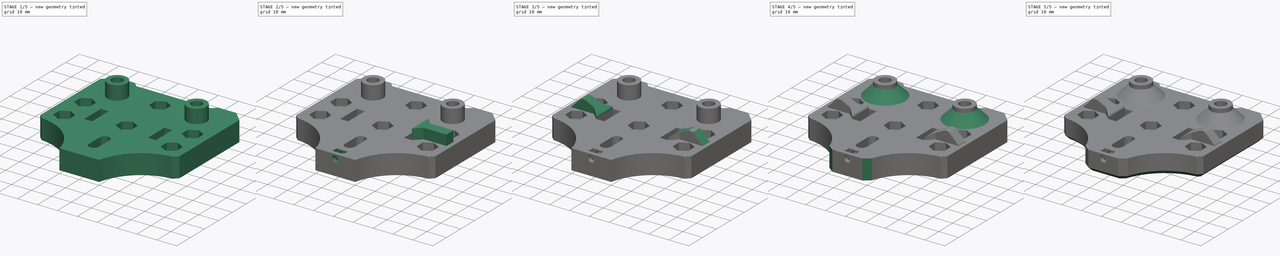
[diagram: build sequence overview — one tinted view per stage of 5, left to right]
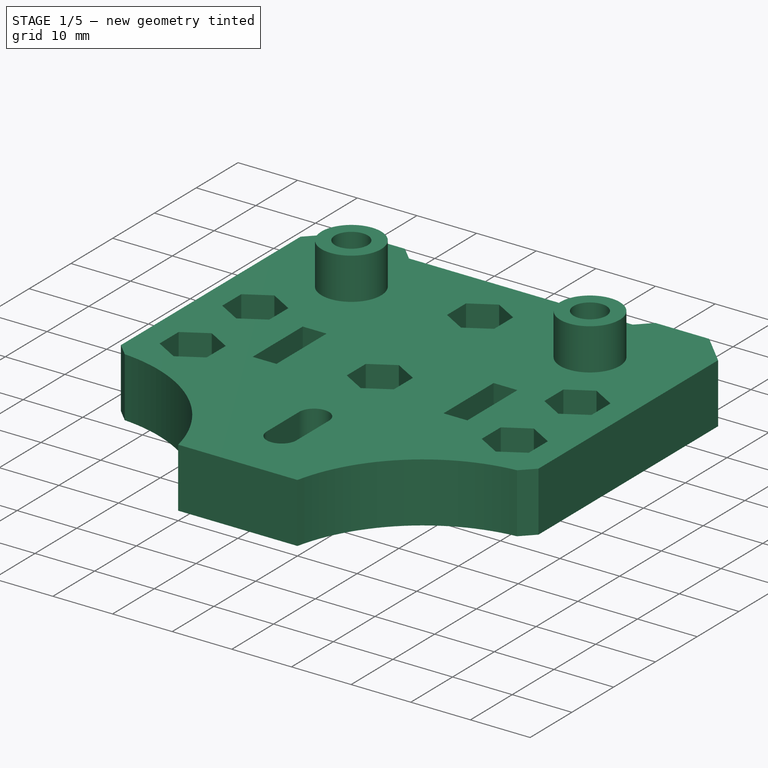
[diagram: stage 1 of 5 — iso view after this stage's code; geometry added in this stage tinted green]
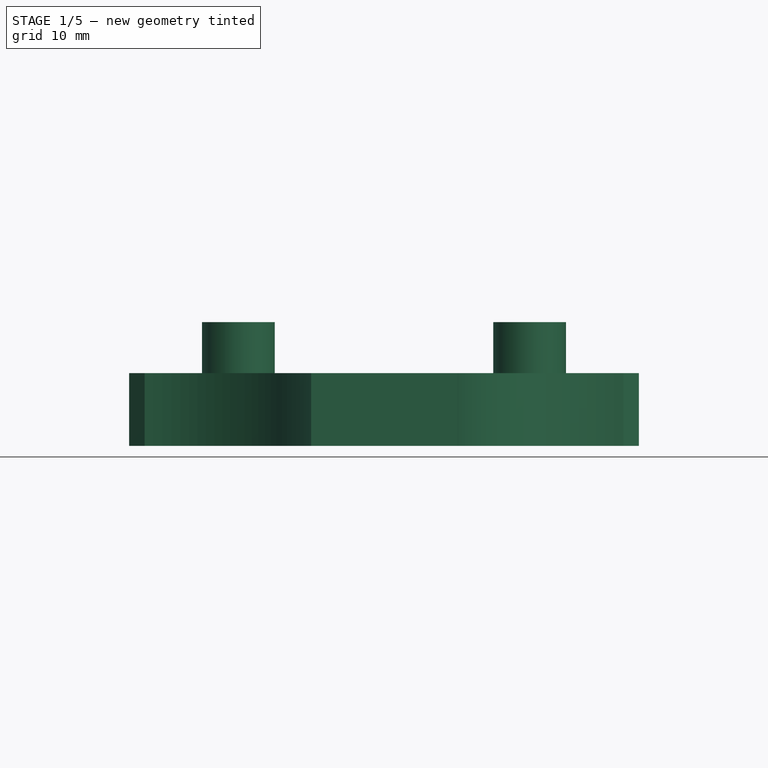
[diagram: stage 1 of 5 — front view after this stage's code; geometry added in this stage tinted green]
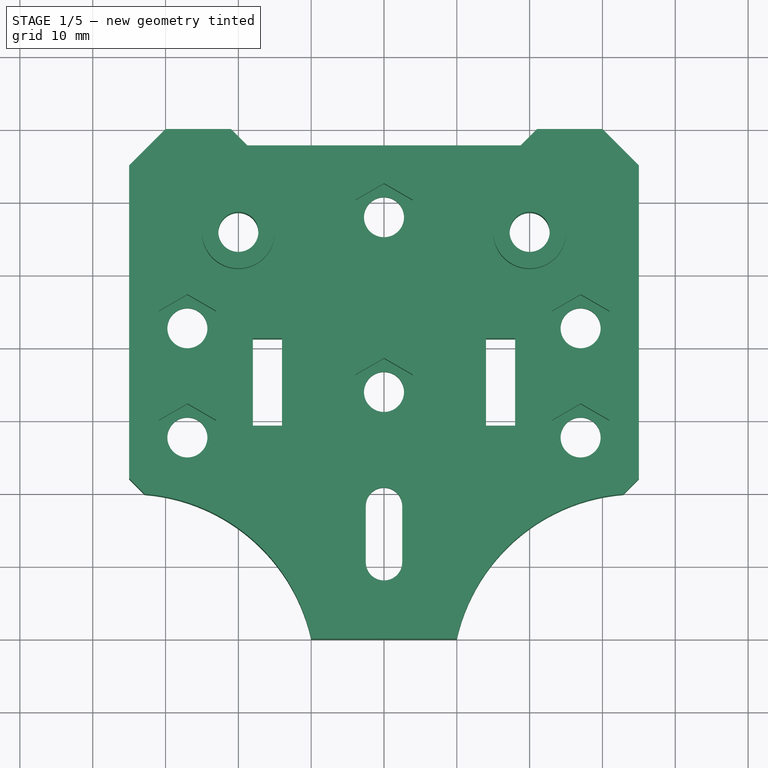
[diagram: stage 1 of 5 — top view after this stage's code; geometry added in this stage tinted green]
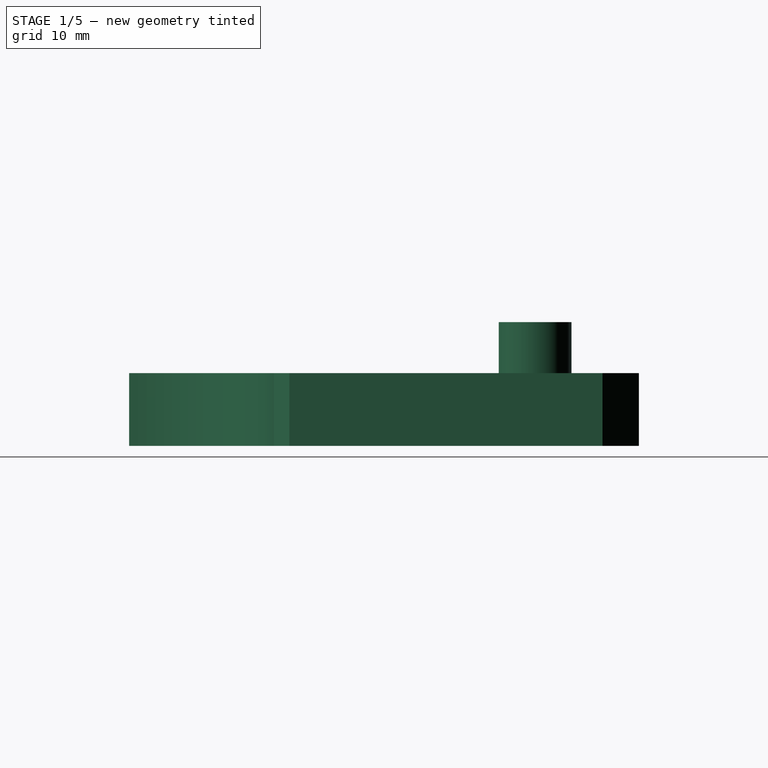
[diagram: stage 1 of 5 — right view after this stage's code; geometry added in this stage tinted green]
FCSTD DOCUMENT  (FreeCAD 0.20R29410 (Git))
Label: y-gantry
License: All rights reserved
LicenseURL: http://en.wikipedia.org/wiki/All_rights_reserved
objects: Sketcher::SketchObject×10, PartDesign::Pad×6, PartDesign::Chamfer×5, PartDesign::Plane×4, PartDesign::Pocket×4, PartDesign::Fillet×2, PartDesign::Mirrored×1, PartDesign::Body×1
note: 50 computed .brp shape members not serialized (recipe doc carries the construction recipe); baked Part::Feature solids carry a one-line shape summary decoded from their .brp

FEATURE [Sketcher::SketchObject] Sketch
  FullyConstrained = true
  MapMode = 5
  Support = -> [XY_Plane]
  expr: Constraints[88] = 27.5 + 1 - 0.75
  sketch-geometry (88):
    g0: LineSegment StartX=-35 StartY=-70 StartZ=0 EndX=35 EndY=-70 EndZ=0
    g1: LineSegment StartX=35 StartY=-70 StartZ=0 EndX=35 EndY=0 EndZ=0
    g2: LineSegment StartX=35 StartY=0 StartZ=0 EndX=-35 EndY=0 EndZ=0
    g3: LineSegment StartX=-35 StartY=0 StartZ=0 EndX=-35 EndY=-70 EndZ=0
    g4: LineSegment StartX=-18.75 StartY=-2.25 StartZ=0 EndX=18.75 EndY=-2.25 EndZ=0
    g5: LineSegment StartX=-18.75 StartY=-2.25 StartZ=0 EndX=-21 EndY=0 EndZ=0
    g6: LineSegment StartX=-21 StartY=0 StartZ=0 EndX=-30 EndY=0 EndZ=0
    g7: LineSegment StartX=-30 StartY=0 StartZ=0 EndX=-35 EndY=-5 EndZ=0
    g8: LineSegment StartX=18.75 StartY=-2.25 StartZ=0 EndX=21 EndY=0 EndZ=0
    g9: LineSegment StartX=21 StartY=0 StartZ=0 EndX=30 EndY=0 EndZ=0
    g10: LineSegment StartX=30 StartY=0 StartZ=0 EndX=35 EndY=-5 EndZ=0
    g11: LineSegment StartX=-35 StartY=-5 StartZ=0 EndX=-35 EndY=-48 EndZ=0
    g12: LineSegment StartX=-35 StartY=-48 StartZ=0 EndX=-32.8787 EndY=-50.1213 EndZ=0
    g13: LineSegment StartX=35 StartY=-5 StartZ=0 EndX=35 EndY=-48 EndZ=0
    g14: LineSegment StartX=35 StartY=-48 StartZ=0 EndX=32.8787 EndY=-50.1213 EndZ=0
    g15: LineSegment StartX=10 StartY=-70 StartZ=0 EndX=-10 EndY=-70 EndZ=0
    g16: ArcOfCircle CenterX=-34.8905 CenterY=-75.5418 CenterZ=0 NormalX=0 NormalY=0 NormalZ=1 AngleXU=0 Radius=25.5 StartAngle=0.219075 EndAngle=1.49182
    g17: ArcOfCircle CenterX=34.8905 CenterY=-75.5418 CenterZ=0 NormalX=0 NormalY=0 NormalZ=1 AngleXU=0 Radius=25.5 StartAngle=1.64977 EndAngle=2.92252
    g18: ArcOfCircle CenterX=0 CenterY=-59.5 CenterZ=0 NormalX=0 NormalY=0 NormalZ=1 AngleXU=0 Radius=2.5 StartAngle=3.14159 EndAngle=6.28319
    g19: ArcOfCircle CenterX=2e-16 CenterY=-51.75 CenterZ=0 NormalX=0 NormalY=0 NormalZ=1 AngleXU=0 Radius=2.5 StartAngle=1e-16 EndAngle=3.14159
    g20: LineSegment StartX=2.5 StartY=-59.5 StartZ=0 EndX=2.5 EndY=-51.75 EndZ=0
    g21: LineSegment StartX=-2.5 StartY=-59.5 StartZ=0 EndX=-2.5 EndY=-51.75 EndZ=0
    g22: Circle CenterX=0 CenterY=-36 CenterZ=0 NormalX=0 NormalY=0 NormalZ=1 AngleXU=0 Radius=2.75
    g23: Circle CenterX=0 CenterY=-12 CenterZ=0 NormalX=0 NormalY=0 NormalZ=1 AngleXU=0 Radius=2.75
    g24: Circle CenterX=-20 CenterY=-14.25 CenterZ=0 NormalX=0 NormalY=0 NormalZ=1 AngleXU=0 Radius=2.75
    g25: Circle CenterX=-27 CenterY=-27.25 CenterZ=0 NormalX=0 NormalY=0 NormalZ=1 AngleXU=0 Radius=2.75
    g26: Circle CenterX=-27 CenterY=-42.25 CenterZ=0 NormalX=0 NormalY=0 NormalZ=1 AngleXU=0 Radius=2.75
    g27: LineSegment StartX=-18 StartY=-40.75 StartZ=0 EndX=-14 EndY=-40.75 EndZ=0
    g28: LineSegment StartX=-14 StartY=-40.75 StartZ=0 EndX=-14 EndY=-28.75 EndZ=0
    g29: LineSegment StartX=-14 StartY=-28.75 StartZ=0 EndX=-18 EndY=-28.75 EndZ=0
    g30: LineSegment StartX=-18 StartY=-28.75 StartZ=0 EndX=-18 EndY=-40.75 EndZ=0
    g31: LineSegment StartX=-18 StartY=-34.75 StartZ=0 EndX=-14 EndY=-34.75 EndZ=0
    g32: Circle CenterX=20 CenterY=-14.25 CenterZ=0 NormalX=0 NormalY=0 NormalZ=1 AngleXU=0 Radius=2.75
    g33: Circle CenterX=27 CenterY=-27.25 CenterZ=0 NormalX=0 NormalY=0 NormalZ=1 AngleXU=0 Radius=2.75
    g34: Circle CenterX=27 CenterY=-42.25 CenterZ=0 NormalX=0 NormalY=0 NormalZ=1 AngleXU=0 Radius=2.75
    g35: LineSegment StartX=18 StartY=-40.75 StartZ=0 EndX=14 EndY=-40.75 EndZ=0
    g36: LineSegment StartX=14 StartY=-40.75 StartZ=0 EndX=14 EndY=-28.75 EndZ=0
    g37: LineSegment StartX=14 StartY=-28.75 StartZ=0 EndX=18 EndY=-28.75 EndZ=0
    g38: LineSegment StartX=18 StartY=-28.75 StartZ=0 EndX=18 EndY=-40.75 EndZ=0
    g39: LineSegment StartX=18 StartY=-34.75 StartZ=0 EndX=14 EndY=-34.75 EndZ=0
    g40: ArcOfCircle CenterX=0 CenterY=-59.5 CenterZ=0 NormalX=0 NormalY=0 NormalZ=1 AngleXU=0 Radius=5 StartAngle=3.14159 EndAngle=6.28319
    g41: ArcOfCircle CenterX=2e-16 CenterY=-51.75 CenterZ=0 NormalX=0 NormalY=0 NormalZ=1 AngleXU=0 Radius=5 StartAngle=-9e-16 EndAngle=3.14159
    g42: LineSegment StartX=5 StartY=-59.5 StartZ=0 EndX=5 EndY=-51.75 EndZ=0
    g43: LineSegment StartX=-5 StartY=-59.5 StartZ=0 EndX=-5 EndY=-51.75 EndZ=0
    g44: Circle CenterX=-20 CenterY=-14.25 CenterZ=0 NormalX=0 NormalY=0 NormalZ=1 AngleXU=0 Radius=4.5
    g45: Circle CenterX=20 CenterY=-14.25 CenterZ=0 NormalX=0 NormalY=0 NormalZ=1 AngleXU=0 Radius=4.5
    g46: LineSegment StartX=-27 StartY=-46.809 StartZ=0 EndX=-23.0518 EndY=-44.5295 EndZ=0
    g47: LineSegment StartX=-23.0518 StartY=-44.5295 StartZ=0 EndX=-23.0518 EndY=-39.9705 EndZ=0
    g48: LineSegment StartX=-23.0518 StartY=-39.9705 StartZ=0 EndX=-27 EndY=-37.691 EndZ=0
    g49: LineSegment StartX=-27 StartY=-37.691 StartZ=0 EndX=-30.9482 EndY=-39.9705 EndZ=0
    g50: LineSegment StartX=-30.9482 StartY=-39.9705 StartZ=0 EndX=-30.9482 EndY=-44.5295 EndZ=0
    g51: LineSegment StartX=-30.9482 StartY=-44.5295 StartZ=0 EndX=-27 EndY=-46.809 EndZ=0
    g52: Circle CenterX=-27 CenterY=-42.25 CenterZ=0 NormalX=0 NormalY=0 NormalZ=1 AngleXU=0 Radius=4.55902
    g53: LineSegment StartX=-27 StartY=-31.809 StartZ=0 EndX=-23.0518 EndY=-29.5295 EndZ=0
    g54: LineSegment StartX=-23.0518 StartY=-29.5295 StartZ=0 EndX=-23.0518 EndY=-24.9705 EndZ=0
    g55: LineSegment StartX=-23.0518 StartY=-24.9705 StartZ=0 EndX=-27 EndY=-22.691 EndZ=0
    g56: LineSegment StartX=-27 StartY=-22.691 StartZ=0 EndX=-30.9482 EndY=-24.9705 EndZ=0
    g57: LineSegment StartX=-30.9482 StartY=-24.9705 StartZ=0 EndX=-30.9482 EndY=-29.5295 EndZ=0
    g58: LineSegment StartX=-30.9482 StartY=-29.5295 StartZ=0 EndX=-27 EndY=-31.809 EndZ=0
    g59: Circle CenterX=-27 CenterY=-27.25 CenterZ=0 NormalX=0 NormalY=0 NormalZ=1 AngleXU=0 Radius=4.55902
    g60: LineSegment StartX=0 StartY=-40.559 StartZ=0 EndX=3.94822 EndY=-38.2795 EndZ=0
    g61: LineSegment StartX=3.94822 StartY=-38.2795 StartZ=0 EndX=3.94822 EndY=-33.7205 EndZ=0
    g62: LineSegment StartX=3.94822 StartY=-33.7205 StartZ=0 EndX=-4e-16 EndY=-31.441 EndZ=0
    g63: LineSegment StartX=-4e-16 StartY=-31.441 StartZ=0 EndX=-3.94822 EndY=-33.7205 EndZ=0
    g64: LineSegment StartX=-3.94822 StartY=-33.7205 StartZ=0 EndX=-3.94822 EndY=-38.2795 EndZ=0
    g65: LineSegment StartX=-3.94822 StartY=-38.2795 StartZ=0 EndX=0 EndY=-40.559 EndZ=0
    g66: Circle CenterX=0 CenterY=-36 CenterZ=0 NormalX=0 NormalY=0 NormalZ=1 AngleXU=0 Radius=4.55902
    g67: LineSegment StartX=27 StartY=-46.809 StartZ=0 EndX=30.9482 EndY=-44.5295 EndZ=0
    g68: LineSegment StartX=30.9482 StartY=-44.5295 StartZ=0 EndX=30.9482 EndY=-39.9705 EndZ=0
    g69: LineSegment StartX=30.9482 StartY=-39.9705 StartZ=0 EndX=27 EndY=-37.691 EndZ=0
    g70: LineSegment StartX=27 StartY=-37.691 StartZ=0 EndX=23.0518 EndY=-39.9705 EndZ=0
    g71: LineSegment StartX=23.0518 StartY=-39.9705 StartZ=0 EndX=23.0518 EndY=-44.5295 EndZ=0
    g72: LineSegment StartX=23.0518 StartY=-44.5295 StartZ=0 EndX=27 EndY=-46.809 EndZ=0
    g73: Circle CenterX=27 CenterY=-42.25 CenterZ=0 NormalX=0 NormalY=0 NormalZ=1 AngleXU=0 Radius=4.55902
    g74: LineSegment StartX=27 StartY=-31.809 StartZ=0 EndX=30.9482 EndY=-29.5295 EndZ=0
    g75: LineSegment StartX=30.9482 StartY=-29.5295 StartZ=0 EndX=30.9482 EndY=-24.9705 EndZ=0
    g76: LineSegment StartX=30.9482 StartY=-24.9705 StartZ=0 EndX=27 EndY=-22.691 EndZ=0
    g77: LineSegment StartX=27 StartY=-22.691 StartZ=0 EndX=23.0518 EndY=-24.9705 EndZ=0
    g78: LineSegment StartX=23.0518 StartY=-24.9705 StartZ=0 EndX=23.0518 EndY=-29.5295 EndZ=0
    g79: LineSegment StartX=23.0518 StartY=-29.5295 StartZ=0 EndX=27 EndY=-31.809 EndZ=0
    g80: Circle CenterX=27 CenterY=-27.25 CenterZ=0 NormalX=0 NormalY=0 NormalZ=1 AngleXU=0 Radius=4.55902
    g81: LineSegment StartX=0 StartY=-16.559 StartZ=0 EndX=3.94822 EndY=-14.2795 EndZ=0
    g82: LineSegment StartX=3.94822 StartY=-14.2795 StartZ=0 EndX=3.94822 EndY=-9.72049 EndZ=0
    g83: LineSegment StartX=3.94822 StartY=-9.72049 StartZ=0 EndX=0 EndY=-7.44098 EndZ=0
    g84: LineSegment StartX=0 StartY=-7.44098 StartZ=0 EndX=-3.94822 EndY=-9.72049 EndZ=0
    g85: LineSegment StartX=-3.94822 StartY=-9.72049 StartZ=0 EndX=-3.94822 EndY=-14.2795 EndZ=0
    g86: LineSegment StartX=-3.94822 StartY=-14.2795 StartZ=0 EndX=0 EndY=-16.559 EndZ=0
    g87: Circle CenterX=0 CenterY=-12 CenterZ=0 NormalX=0 NormalY=0 NormalZ=1 AngleXU=0 Radius=4.55902
  constraints (219):
    c: Coincident(g0,g1)
    c: Coincident(g1,g2)
    c: Coincident(g2,g3)
    c: Coincident(g3,g0)
    c: Horizontal(g0)
    c: Vertical(g1)
    c: Vertical(g3)
    c: Symmetric(g2,g1,g-2)
    c: PointOnObject(g2,g-1)
    c: DistanceX(g2,g2) = 70
    c: DistanceY(g3,g3) = 70
    c: Symmetric(g4,g4,g-2)
    c: DistanceX(g4,g4) = 37.5
    c: Coincident(g5,g4)
    c: PointOnObject(g5,g2)
    c: Coincident(g6,g5)
    c: PointOnObject(g6,g2)
    c: Coincident(g7,g6)
    c: PointOnObject(g7,g3)
    c: Angle(g4,g5) = 2.35619
    c: DistanceY(g5,g5) = 2.25
    c: Angle(g7,g-1) = 2.35619
    c: DistanceX(g6,g6) = 9
    c: PointOnObject(g8,g-1)
    c: Coincident(g9,g8)
    c: PointOnObject(g9,g2)
    c: Coincident(g10,g9)
    c: PointOnObject(g10,g1)
    c: Equal(g9,g6)
    c: Equal(g10,g7)
    c: Equal(g8,g5)
    c: Coincident(g8,g4)
    c: Coincident(g11,g7)
    c: PointOnObject(g11,g3)
    c: Coincident(g12,g11)
    c: Coincident(g13,g10)
    c: PointOnObject(g13,g1)
    c: Coincident(g14,g13)
    c: Horizontal(g11,g13)
    c: Symmetric(g12,g14,g-2)
    c: Angle(g12,g3) = 2.35619
    c: DistanceY(g11,g11) = 43
    c: PointOnObject(g15,g0)
    c: Symmetric(g15,g15,g-2)
    c: DistanceX(g15,g15) = 20
    c: Distance(g12) = 3
    c: Diameter(g16) = 51
    c: Coincident(g16,g15)
    c: Coincident(g16,g12)
    c: PointOnObject(g15,g17)
    c: Equal(g17,g16)
    c: PointOnObject(g17,g0)
    c: Coincident(g17,g14)
    c: Tangent(g18,g21) = 1.5708
    c: Tangent(g18,g20) = -1.5708
    c: Tangent(g20,g19) = -1.5708
    c: Tangent(g21,g19) = 1.5708
    c: Vertical(g20)
    c: Equal(g18,g19)
    c: PointOnObject(g18,g-2)
    c: PointOnObject(g22,g-2)
    c: PointOnObject(g23,g-2)
    c: Coincident(g27,g28)
    c: Coincident(g28,g29)
    c: Coincident(g29,g30)
    c: Coincident(g30,g27)
    c: Horizontal(g27)
    c: Horizontal(g29)
    c: Vertical(g28)
    c: Vertical(g30)
    c: Diameter(g26) = 5.5
    c: Equal(g26,g22)
    c: Equal(g22,g25)
    c: Equal(g25,g23)
    c: Equal(g23,g24)
    c: DistanceY(g18,g19) = 7.75
    c: Diameter(g19) = 5
    c: DistanceY(g15,g18) = 10.5
    c: DistanceY(g22,g23) = 24
    c: DistanceY(g23,g4) = 9.75
    c: Vertical(g25,g26)
    c: PointOnObject(g31,g28)
    c: Symmetric(g30,g30,g31)
    c: Symmetric(g25,g26,g31)
    c: DistanceY(g28,g28) = 12
    c: DistanceX(g27,g27) = 4
    c: DistanceX(g11,g26) = 8
    c: DistanceY(g26,g25) = 15
    c: DistanceY(g15,g26) = 27.75
    c: DistanceX(g31,g22) = 14
    c: DistanceX(g24,g23) = 20
    c: DistanceY(g22,g24) = 21.75
    c: Coincident(g35,g36)
    c: Coincident(g36,g37)
    c: Coincident(g37,g38)
    c: Coincident(g38,g35)
    c: Horizontal(g35)
    c: Vertical(g36)
    c: Vertical(g38)
    c: Diameter(g34) = 5.5
    c: PointOnObject(g39,g36)
    c: Symmetric(g38,g38,g39)
    c: Symmetric(g33,g34,g39)
    c: Symmetric(g36,g28,g-2)
    c: Symmetric(g37,g29,g-2)
    c: Vertical(g34,g33)
    c: Horizontal(g34,g26)
    c: Symmetric(g33,g25,g-2)
    c: Equal(g33,g32)
    c: Equal(g32,g34)
    c: Symmetric(g32,g24,g-2)
    c: Tangent(g40,g43) = 1.5708
    c: Tangent(g40,g42) = -1.5708
    c: Tangent(g42,g41) = -1.5708
    c: Tangent(g43,g41) = 1.5708
    c: Vertical(g42)
    c: Coincident(g41,g19)
    c: Coincident(g18,g40)
    c: Diameter(g40) = 10
    c: Coincident(g44,g24)
    c: Coincident(g45,g32)
    c: Equal(g44,g45)
    c: Diameter(g44) = 9
    c: Coincident(g46,g47)
    c: Coincident(g47,g48)
    c: Coincident(g48,g49)
    c: Coincident(g49,g50)
    c: Coincident(g50,g51)
    c: Coincident(g51,g46)
    c: Equal(g46, g47-g51) x5
    c: PointOnObject(g46,g52)
    c: PointOnObject(g47,g52)
    c: PointOnObject(g48,g52)
    c: PointOnObject(g49,g52)
    c: PointOnObject(g50,g52)
    c: PointOnObject(g51,g52)
    c: Coincident(g52,g26)
    c: Coincident(g53,g54)
    c: Coincident(g54,g55)
    c: Coincident(g55,g56)
    c: Coincident(g56,g57)
    c: Coincident(g57,g58)
    c: Coincident(g58,g53)
    c: Equal(g53, g54-g58) x5
    c: PointOnObject(g53,g59)
    c: PointOnObject(g54,g59)
    c: PointOnObject(g55,g59)
    c: PointOnObject(g56,g59)
    c: PointOnObject(g57,g59)
    c: PointOnObject(g58,g59)
    c: Coincident(g59,g25)
    c: Coincident(g60,g61)
    c: Coincident(g61,g62)
    c: Coincident(g62,g63)
    c: Coincident(g63,g64)
    c: Coincident(g64,g65)
    c: Coincident(g65,g60)
    c: Equal(g60, g61-g65) x5
    c: PointOnObject(g60,g66)
    c: PointOnObject(g61,g66)
    c: PointOnObject(g62,g66)
    c: PointOnObject(g63,g66)
    c: PointOnObject(g64,g66)
    c: PointOnObject(g65,g66)
    c: Coincident(g66,g22)
    c: PointOnObject(g65,g-2)
    c: Coincident(g67,g68)
    c: Coincident(g68,g69)
    c: Coincident(g69,g70)
    c: Coincident(g70,g71)
    c: Coincident(g71,g72)
    c: Coincident(g72,g67)
    c: Equal(g67, g68-g72) x5
    c: PointOnObject(g67,g73)
    c: PointOnObject(g68,g73)
    c: PointOnObject(g69,g73)
    c: PointOnObject(g70,g73)
    c: PointOnObject(g71,g73)
    c: PointOnObject(g72,g73)
    c: Coincident(g73,g34)
    c: Coincident(g74,g75)
    c: Coincident(g75,g76)
    c: Coincident(g76,g77)
    c: Coincident(g77,g78)
    c: Coincident(g78,g79)
    c: Coincident(g79,g74)
    c: Equal(g74, g75-g79) x5
    c: PointOnObject(g74,g80)
    c: PointOnObject(g75,g80)
    c: PointOnObject(g76,g80)
    c: PointOnObject(g77,g80)
    c: PointOnObject(g78,g80)
    c: PointOnObject(g79,g80)
    c: Coincident(g80,g33)
    c: Coincident(g81,g82)
    c: Coincident(g82,g83)
    c: Coincident(g83,g84)
    c: Coincident(g84,g85)
    c: Coincident(g85,g86)
    c: Coincident(g86,g81)
    c: Equal(g81, g82-g86) x5
    c: PointOnObject(g81,g87)
    c: PointOnObject(g82,g87)
    c: PointOnObject(g83,g87)
    c: PointOnObject(g84,g87)
    c: PointOnObject(g85,g87)
    c: PointOnObject(g86,g87)
    c: Coincident(g87,g23)
    c: PointOnObject(g86,g-2)
    c: Equal(g59,g87)
    c: Equal(g87,g66)
    c: Equal(g66,g52)
    c: Equal(g52,g73)
    c: Equal(g73,g80)
    c: Vertical(g50)
    c: Vertical(g57)
    c: Vertical(g71)
    c: Vertical(g78)
    c: Block(g52)
FEATURE [PartDesign::Pad] Pad  label="Initial XY Profile"
  Direction = (0,0,1)
  Length = 10
  Length2 = 100
  Profile = -> Sketch
  Type = 0
FEATURE [PartDesign::Plane] DatumPlane  label="Backside Face Datum"
  Length = 86.3095
  MapMode = 5
  Placement = pos=(0,0,10) rot=(0,0,1;0rad)
  ResizeMode = 0
  Support = -> [Pad]
  Width = 111.31
FEATURE [Sketcher::SketchObject] Sketch002
  FullyConstrained = true
  MapMode = 5
  Placement = pos=(0,0,10) rot=(0,0,1;0rad)
  Support = -> [DatumPlane]
  expr: Constraints[88] = 28.5 - 0.75
  sketch-geometry (88):
    g0: LineSegment StartX=-35 StartY=-70 StartZ=0 EndX=35 EndY=-70 EndZ=0
    g1: LineSegment StartX=35 StartY=-70 StartZ=0 EndX=35 EndY=0 EndZ=0
    g2: LineSegment StartX=35 StartY=0 StartZ=0 EndX=-35 EndY=0 EndZ=0
    g3: LineSegment StartX=-35 StartY=0 StartZ=0 EndX=-35 EndY=-70 EndZ=0
    g4: LineSegment StartX=-18.75 StartY=-2.25 StartZ=0 EndX=18.75 EndY=-2.25 EndZ=0
    g5: LineSegment StartX=-18.75 StartY=-2.25 StartZ=0 EndX=-21 EndY=0 EndZ=0
    g6: LineSegment StartX=-21 StartY=0 StartZ=0 EndX=-30 EndY=0 EndZ=0
    g7: LineSegment StartX=-30 StartY=0 StartZ=0 EndX=-35 EndY=-5 EndZ=0
    g8: LineSegment StartX=18.75 StartY=-2.25 StartZ=0 EndX=21 EndY=0 EndZ=0
    g9: LineSegment StartX=21 StartY=0 StartZ=0 EndX=30 EndY=0 EndZ=0
    g10: LineSegment StartX=30 StartY=0 StartZ=0 EndX=35 EndY=-5 EndZ=0
    g11: LineSegment StartX=-35 StartY=-5 StartZ=0 EndX=-35 EndY=-48 EndZ=0
    g12: LineSegment StartX=-35 StartY=-48 StartZ=0 EndX=-32.8787 EndY=-50.1213 EndZ=0
    g13: LineSegment StartX=35 StartY=-5 StartZ=0 EndX=35 EndY=-48 EndZ=0
    g14: LineSegment StartX=35 StartY=-48 StartZ=0 EndX=32.8787 EndY=-50.1213 EndZ=0
    g15: LineSegment StartX=10 StartY=-70 StartZ=0 EndX=-10 EndY=-70 EndZ=0
    g16: ArcOfCircle CenterX=-34.8905 CenterY=-75.5418 CenterZ=0 NormalX=0 NormalY=0 NormalZ=1 AngleXU=0 Radius=25.5 StartAngle=0.219075 EndAngle=1.49182
    g17: ArcOfCircle CenterX=34.8905 CenterY=-75.5418 CenterZ=0 NormalX=0 NormalY=0 NormalZ=1 AngleXU=0 Radius=25.5 StartAngle=1.64977 EndAngle=2.92252
    g18: ArcOfCircle CenterX=0 CenterY=-59.75 CenterZ=0 NormalX=0 NormalY=0 NormalZ=1 AngleXU=0 Radius=2.5 StartAngle=3.14159 EndAngle=6.28319
    g19: ArcOfCircle CenterX=2e-16 CenterY=-51.75 CenterZ=0 NormalX=0 NormalY=0 NormalZ=1 AngleXU=0 Radius=2.5 StartAngle=-9e-16 EndAngle=3.14159
    g20: LineSegment StartX=2.5 StartY=-59.75 StartZ=0 EndX=2.5 EndY=-51.75 EndZ=0
    g21: LineSegment StartX=-2.5 StartY=-59.75 StartZ=0 EndX=-2.5 EndY=-51.75 EndZ=0
    g22: Circle CenterX=0 CenterY=-36 CenterZ=0 NormalX=0 NormalY=0 NormalZ=1 AngleXU=0 Radius=2.75
    g23: Circle CenterX=0 CenterY=-12 CenterZ=0 NormalX=0 NormalY=0 NormalZ=1 AngleXU=0 Radius=2.75
    g24: Circle CenterX=-20 CenterY=-14.25 CenterZ=0 NormalX=0 NormalY=0 NormalZ=1 AngleXU=0 Radius=2.75
    g25: Circle CenterX=-27 CenterY=-27.25 CenterZ=0 NormalX=0 NormalY=0 NormalZ=1 AngleXU=0 Radius=2.75
    g26: Circle CenterX=-27 CenterY=-42.25 CenterZ=0 NormalX=0 NormalY=0 NormalZ=1 AngleXU=0 Radius=2.75
    g27: LineSegment StartX=-18 StartY=-40.75 StartZ=0 EndX=-14 EndY=-40.75 EndZ=0
    g28: LineSegment StartX=-14 StartY=-40.75 StartZ=0 EndX=-14 EndY=-28.75 EndZ=0
    g29: LineSegment StartX=-14 StartY=-28.75 StartZ=0 EndX=-18 EndY=-28.75 EndZ=0
    g30: LineSegment StartX=-18 StartY=-28.75 StartZ=0 EndX=-18 EndY=-40.75 EndZ=0
    g31: LineSegment StartX=-18 StartY=-34.75 StartZ=0 EndX=-14 EndY=-34.75 EndZ=0
    g32: Circle CenterX=20 CenterY=-14.25 CenterZ=0 NormalX=0 NormalY=0 NormalZ=1 AngleXU=0 Radius=2.75
    g33: Circle CenterX=27 CenterY=-27.25 CenterZ=0 NormalX=0 NormalY=0 NormalZ=1 AngleXU=0 Radius=2.75
    g34: Circle CenterX=27 CenterY=-42.25 CenterZ=0 NormalX=0 NormalY=0 NormalZ=1 AngleXU=0 Radius=2.75
    g35: LineSegment StartX=18 StartY=-40.75 StartZ=0 EndX=14 EndY=-40.75 EndZ=0
    g36: LineSegment StartX=14 StartY=-40.75 StartZ=0 EndX=14 EndY=-28.75 EndZ=0
    g37: LineSegment StartX=14 StartY=-28.75 StartZ=0 EndX=18 EndY=-28.75 EndZ=0
    g38: LineSegment StartX=18 StartY=-28.75 StartZ=0 EndX=18 EndY=-40.75 EndZ=0
    g39: LineSegment StartX=18 StartY=-34.75 StartZ=0 EndX=14 EndY=-34.75 EndZ=0
    g40: ArcOfCircle CenterX=0 CenterY=-59.75 CenterZ=0 NormalX=0 NormalY=0 NormalZ=1 AngleXU=0 Radius=5 StartAngle=3.14159 EndAngle=6.28319
    g41: ArcOfCircle CenterX=2e-16 CenterY=-51.75 CenterZ=0 NormalX=0 NormalY=0 NormalZ=1 AngleXU=0 Radius=5 StartAngle=5e-16 EndAngle=3.14159
    g42: LineSegment StartX=5 StartY=-59.75 StartZ=0 EndX=5 EndY=-51.75 EndZ=0
    g43: LineSegment StartX=-5 StartY=-59.75 StartZ=0 EndX=-5 EndY=-51.75 EndZ=0
    g44: Circle CenterX=-20 CenterY=-14.25 CenterZ=0 NormalX=0 NormalY=0 NormalZ=1 AngleXU=0 Radius=4.5
    g45: Circle CenterX=20 CenterY=-14.25 CenterZ=0 NormalX=0 NormalY=0 NormalZ=1 AngleXU=0 Radius=4.5
    g46: LineSegment StartX=-27 StartY=-46.809 StartZ=0 EndX=-23.0518 EndY=-44.5295 EndZ=0
    g47: LineSegment StartX=-23.0518 StartY=-44.5295 StartZ=0 EndX=-23.0518 EndY=-39.9705 EndZ=0
    g48: LineSegment StartX=-23.0518 StartY=-39.9705 StartZ=0 EndX=-27 EndY=-37.691 EndZ=0
    g49: LineSegment StartX=-27 StartY=-37.691 StartZ=0 EndX=-30.9482 EndY=-39.9705 EndZ=0
    g50: LineSegment StartX=-30.9482 StartY=-39.9705 StartZ=0 EndX=-30.9482 EndY=-44.5295 EndZ=0
    g51: LineSegment StartX=-30.9482 StartY=-44.5295 StartZ=0 EndX=-27 EndY=-46.809 EndZ=0
    g52: Circle CenterX=-27 CenterY=-42.25 CenterZ=0 NormalX=0 NormalY=0 NormalZ=1 AngleXU=0 Radius=4.55902
    g53: LineSegment StartX=-27 StartY=-31.809 StartZ=0 EndX=-23.0518 EndY=-29.5295 EndZ=0
    g54: LineSegment StartX=-23.0518 StartY=-29.5295 StartZ=0 EndX=-23.0518 EndY=-24.9705 EndZ=0
    g55: LineSegment StartX=-23.0518 StartY=-24.9705 StartZ=0 EndX=-27 EndY=-22.691 EndZ=0
    g56: LineSegment StartX=-27 StartY=-22.691 StartZ=0 EndX=-30.9482 EndY=-24.9705 EndZ=0
    g57: LineSegment StartX=-30.9482 StartY=-24.9705 StartZ=0 EndX=-30.9482 EndY=-29.5295 EndZ=0
    g58: LineSegment StartX=-30.9482 StartY=-29.5295 StartZ=0 EndX=-27 EndY=-31.809 EndZ=0
    g59: Circle CenterX=-27 CenterY=-27.25 CenterZ=0 NormalX=0 NormalY=0 NormalZ=1 AngleXU=0 Radius=4.55902
    g60: LineSegment StartX=0 StartY=-40.559 StartZ=0 EndX=3.94822 EndY=-38.2795 EndZ=0
    g61: LineSegment StartX=3.94822 StartY=-38.2795 StartZ=0 EndX=3.94822 EndY=-33.7205 EndZ=0
    g62: LineSegment StartX=3.94822 StartY=-33.7205 StartZ=0 EndX=0 EndY=-31.441 EndZ=0
    g63: LineSegment StartX=0 StartY=-31.441 StartZ=0 EndX=-3.94822 EndY=-33.7205 EndZ=0
    g64: LineSegment StartX=-3.94822 StartY=-33.7205 StartZ=0 EndX=-3.94822 EndY=-38.2795 EndZ=0
    g65: LineSegment StartX=-3.94822 StartY=-38.2795 StartZ=0 EndX=0 EndY=-40.559 EndZ=0
    g66: Circle CenterX=0 CenterY=-36 CenterZ=0 NormalX=0 NormalY=0 NormalZ=1 AngleXU=0 Radius=4.55902
    g67: LineSegment StartX=27 StartY=-46.809 StartZ=0 EndX=30.9482 EndY=-44.5295 EndZ=0
    g68: LineSegment StartX=30.9482 StartY=-44.5295 StartZ=0 EndX=30.9482 EndY=-39.9705 EndZ=0
    g69: LineSegment StartX=30.9482 StartY=-39.9705 StartZ=0 EndX=27 EndY=-37.691 EndZ=0
    g70: LineSegment StartX=27 StartY=-37.691 StartZ=0 EndX=23.0518 EndY=-39.9705 EndZ=0
    g71: LineSegment StartX=23.0518 StartY=-39.9705 StartZ=0 EndX=23.0518 EndY=-44.5295 EndZ=0
    g72: LineSegment StartX=23.0518 StartY=-44.5295 StartZ=0 EndX=27 EndY=-46.809 EndZ=0
    g73: Circle CenterX=27 CenterY=-42.25 CenterZ=0 NormalX=0 NormalY=0 NormalZ=1 AngleXU=0 Radius=4.55902
    g74: LineSegment StartX=27 StartY=-31.809 StartZ=0 EndX=30.9482 EndY=-29.5295 EndZ=0
    g75: LineSegment StartX=30.9482 StartY=-29.5295 StartZ=0 EndX=30.9482 EndY=-24.9705 EndZ=0
    g76: LineSegment StartX=30.9482 StartY=-24.9705 StartZ=0 EndX=27 EndY=-22.691 EndZ=0
    g77: LineSegment StartX=27 StartY=-22.691 StartZ=0 EndX=23.0518 EndY=-24.9705 EndZ=0
    g78: LineSegment StartX=23.0518 StartY=-24.9705 StartZ=0 EndX=23.0518 EndY=-29.5295 EndZ=0
    g79: LineSegment StartX=23.0518 StartY=-29.5295 StartZ=0 EndX=27 EndY=-31.809 EndZ=0
    g80: Circle CenterX=27 CenterY=-27.25 CenterZ=0 NormalX=0 NormalY=0 NormalZ=1 AngleXU=0 Radius=4.55902
    g81: LineSegment StartX=0 StartY=-16.559 StartZ=0 EndX=3.94822 EndY=-14.2795 EndZ=0
    g82: LineSegment StartX=3.94822 StartY=-14.2795 StartZ=0 EndX=3.94822 EndY=-9.72049 EndZ=0
    g83: LineSegment StartX=3.94822 StartY=-9.72049 StartZ=0 EndX=0 EndY=-7.44098 EndZ=0
    g84: LineSegment StartX=0 StartY=-7.44098 StartZ=0 EndX=-3.94822 EndY=-9.72049 EndZ=0
    g85: LineSegment StartX=-3.94822 StartY=-9.72049 StartZ=0 EndX=-3.94822 EndY=-14.2795 EndZ=0
    g86: LineSegment StartX=-3.94822 StartY=-14.2795 StartZ=0 EndX=0 EndY=-16.559 EndZ=0
    g87: Circle CenterX=0 CenterY=-12 CenterZ=0 NormalX=0 NormalY=0 NormalZ=1 AngleXU=0 Radius=4.55902
  constraints (219):
    c: Coincident(g0,g1)
    c: Coincident(g1,g2)
    c: Coincident(g2,g3)
    c: Coincident(g3,g0)
    c: Horizontal(g0)
    c: Vertical(g1)
    c: Vertical(g3)
    c: Symmetric(g2,g1,g-2)
    c: PointOnObject(g2,g-1)
    c: DistanceX(g2,g2) = 70
    c: DistanceY(g3,g3) = 70
    c: Symmetric(g4,g4,g-2)
    c: DistanceX(g4,g4) = 37.5
    c: Coincident(g5,g4)
    c: PointOnObject(g5,g2)
    c: Coincident(g6,g5)
    c: PointOnObject(g6,g2)
    c: Coincident(g7,g6)
    c: PointOnObject(g7,g3)
    c: Angle(g4,g5) = 2.35619
    c: DistanceY(g5,g5) = 2.25
    c: Angle(g7,g-1) = 2.35619
    c: DistanceX(g6,g6) = 9
    c: PointOnObject(g8,g-1)
    c: Coincident(g9,g8)
    c: PointOnObject(g9,g2)
    c: Coincident(g10,g9)
    c: PointOnObject(g10,g1)
    c: Equal(g9,g6)
    c: Equal(g10,g7)
    c: Equal(g8,g5)
    c: Coincident(g8,g4)
    c: Coincident(g11,g7)
    c: PointOnObject(g11,g3)
    c: Coincident(g12,g11)
    c: Coincident(g13,g10)
    c: PointOnObject(g13,g1)
    c: Coincident(g14,g13)
    c: Horizontal(g11,g13)
    c: Symmetric(g12,g14,g-2)
    c: Angle(g12,g3) = 2.35619
    c: DistanceY(g11,g11) = 43
    c: PointOnObject(g15,g0)
    c: Symmetric(g15,g15,g-2)
    c: DistanceX(g15,g15) = 20
    c: Distance(g12) = 3
    c: Diameter(g16) = 51
    c: Coincident(g16,g15)
    c: Coincident(g16,g12)
    c: PointOnObject(g15,g17)
    c: Equal(g17,g16)
    c: PointOnObject(g17,g0)
    c: Coincident(g17,g14)
    c: Tangent(g18,g21) = 1.5708
    c: Tangent(g18,g20) = -1.5708
    c: Tangent(g20,g19) = -1.5708
    c: Tangent(g21,g19) = 1.5708
    c: Vertical(g20)
    c: Equal(g18,g19)
    c: PointOnObject(g18,g-2)
    c: PointOnObject(g22,g-2)
    c: PointOnObject(g23,g-2)
    c: Coincident(g27,g28)
    c: Coincident(g28,g29)
    c: Coincident(g29,g30)
    c: Coincident(g30,g27)
    c: Horizontal(g27)
    c: Horizontal(g29)
    c: Vertical(g28)
    c: Vertical(g30)
    c: Diameter(g26) = 5.5
    c: Equal(g26,g22)
    c: Equal(g22,g25)
    c: Equal(g25,g23)
    c: Equal(g23,g24)
    c: DistanceY(g18,g19) = 8
    c: Diameter(g19) = 5
    c: DistanceY(g15,g18) = 10.25
    c: DistanceY(g22,g23) = 24
    c: DistanceY(g23,g4) = 9.75
    c: Vertical(g25,g26)
    c: PointOnObject(g31,g28)
    c: Symmetric(g30,g30,g31)
    c: Symmetric(g25,g26,g31)
    c: DistanceY(g28,g28) = 12
    c: DistanceX(g27,g27) = 4
    c: DistanceX(g11,g26) = 8
    c: DistanceY(g26,g25) = 15
    c: DistanceY(g15,g26) = 27.75
    c: DistanceX(g31,g22) = 14
    c: DistanceX(g24,g23) = 20
    c: DistanceY(g22,g24) = 21.75
    c: Coincident(g35,g36)
    c: Coincident(g36,g37)
    c: Coincident(g37,g38)
    c: Coincident(g38,g35)
    c: Horizontal(g35)
    c: Vertical(g36)
    c: Vertical(g38)
    c: Diameter(g34) = 5.5
    c: PointOnObject(g39,g36)
    c: Symmetric(g38,g38,g39)
    c: Symmetric(g33,g34,g39)
    c: Symmetric(g36,g28,g-2)
    c: Symmetric(g37,g29,g-2)
    c: Vertical(g34,g33)
    c: Horizontal(g34,g26)
    c: Symmetric(g33,g25,g-2)
    c: Equal(g33,g32)
    c: Equal(g32,g34)
    c: Symmetric(g32,g24,g-2)
    c: Tangent(g40,g43) = 1.5708
    c: Tangent(g40,g42) = -1.5708
    c: Tangent(g42,g41) = -1.5708
    c: Tangent(g43,g41) = 1.5708
    c: Vertical(g42)
    c: Coincident(g41,g19)
    c: Coincident(g18,g40)
    c: Diameter(g40) = 10
    c: Coincident(g44,g24)
    c: Coincident(g45,g32)
    c: Equal(g44,g45)
    c: Diameter(g44) = 9
    c: Coincident(g46,g47)
    c: Coincident(g47,g48)
    c: Coincident(g48,g49)
    c: Coincident(g49,g50)
    c: Coincident(g50,g51)
    c: Coincident(g51,g46)
    c: Equal(g46, g47-g51) x5
    c: PointOnObject(g46,g52)
    c: PointOnObject(g47,g52)
    c: PointOnObject(g48,g52)
    c: PointOnObject(g49,g52)
    c: PointOnObject(g50,g52)
    c: PointOnObject(g51,g52)
    c: Coincident(g52,g26)
    c: Coincident(g53,g54)
    c: Coincident(g54,g55)
    c: Coincident(g55,g56)
    c: Coincident(g56,g57)
    c: Coincident(g57,g58)
    c: Coincident(g58,g53)
    c: Equal(g53, g54-g58) x5
    c: PointOnObject(g53,g59)
    c: PointOnObject(g54,g59)
    c: PointOnObject(g55,g59)
    c: PointOnObject(g56,g59)
    c: PointOnObject(g57,g59)
    c: PointOnObject(g58,g59)
    c: Coincident(g59,g25)
    c: Coincident(g60,g61)
    c: Coincident(g61,g62)
    c: Coincident(g62,g63)
    c: Coincident(g63,g64)
    c: Coincident(g64,g65)
    c: Coincident(g65,g60)
    c: Equal(g60, g61-g65) x5
    c: PointOnObject(g60,g66)
    c: PointOnObject(g61,g66)
    c: PointOnObject(g62,g66)
    c: PointOnObject(g63,g66)
    c: PointOnObject(g64,g66)
    c: PointOnObject(g65,g66)
    c: Coincident(g66,g22)
    c: PointOnObject(g65,g-2)
    c: Coincident(g67,g68)
    c: Coincident(g68,g69)
    c: Coincident(g69,g70)
    c: Coincident(g70,g71)
    c: Coincident(g71,g72)
    c: Coincident(g72,g67)
    c: Equal(g67, g68-g72) x5
    c: PointOnObject(g67,g73)
    c: PointOnObject(g68,g73)
    c: PointOnObject(g69,g73)
    c: PointOnObject(g70,g73)
    c: PointOnObject(g71,g73)
    c: PointOnObject(g72,g73)
    c: Coincident(g73,g34)
    c: Coincident(g74,g75)
    c: Coincident(g75,g76)
    c: Coincident(g76,g77)
    c: Coincident(g77,g78)
    c: Coincident(g78,g79)
    c: Coincident(g79,g74)
    c: Equal(g74, g75-g79) x5
    c: PointOnObject(g74,g80)
    c: PointOnObject(g75,g80)
    c: PointOnObject(g76,g80)
    c: PointOnObject(g77,g80)
    c: PointOnObject(g78,g80)
    c: PointOnObject(g79,g80)
    c: Coincident(g80,g33)
    c: Coincident(g81,g82)
    c: Coincident(g82,g83)
    c: Coincident(g83,g84)
    c: Coincident(g84,g85)
    c: Coincident(g85,g86)
    c: Coincident(g86,g81)
    c: Equal(g81, g82-g86) x5
    c: PointOnObject(g81,g87)
    c: PointOnObject(g82,g87)
    c: PointOnObject(g83,g87)
    c: PointOnObject(g84,g87)
    c: PointOnObject(g85,g87)
    c: PointOnObject(g86,g87)
    c: Coincident(g87,g23)
    c: PointOnObject(g86,g-2)
    c: Equal(g59,g87)
    c: Equal(g87,g66)
    c: Equal(g66,g52)
    c: Equal(g52,g73)
    c: Equal(g73,g80)
    c: Vertical(g50)
    c: Vertical(g57)
    c: Vertical(g71)
    c: Vertical(g78)
    c: Block(g52)
FEATURE [Sketcher::SketchObject] Sketch003
  FullyConstrained = true
  MapMode = 5
  Support = -> [XY_Plane]
  sketch-geometry (84):
    g0: LineSegment StartX=-35 StartY=-70 StartZ=0 EndX=35 EndY=-70 EndZ=0
    g1: LineSegment StartX=35 StartY=-70 StartZ=0 EndX=35 EndY=0 EndZ=0
    g2: LineSegment StartX=35 StartY=0 StartZ=0 EndX=-35 EndY=0 EndZ=0
    g3: LineSegment StartX=-35 StartY=0 StartZ=0 EndX=-35 EndY=-70 EndZ=0
    g4: LineSegment StartX=-18.75 StartY=-2.25 StartZ=0 EndX=18.75 EndY=-2.25 EndZ=0
    g5: LineSegment StartX=-18.75 StartY=-2.25 StartZ=0 EndX=-21 EndY=0 EndZ=0
    g6: LineSegment StartX=-21 StartY=0 StartZ=0 EndX=-30 EndY=0 EndZ=0
    g7: LineSegment StartX=-30 StartY=0 StartZ=0 EndX=-35 EndY=-5 EndZ=0
    g8: LineSegment StartX=18.75 StartY=-2.25 StartZ=0 EndX=21 EndY=0 EndZ=0
    g9: LineSegment StartX=21 StartY=0 StartZ=0 EndX=30 EndY=0 EndZ=0
    g10: LineSegment StartX=30 StartY=0 StartZ=0 EndX=35 EndY=-5 EndZ=0
    g11: LineSegment StartX=-35 StartY=-5 StartZ=0 EndX=-35 EndY=-48 EndZ=0
    g12: LineSegment StartX=-35 StartY=-48 StartZ=0 EndX=-32.8787 EndY=-50.1213 EndZ=0
    g13: LineSegment StartX=35 StartY=-5 StartZ=0 EndX=35 EndY=-48 EndZ=0
    g14: LineSegment StartX=35 StartY=-48 StartZ=0 EndX=32.8787 EndY=-50.1213 EndZ=0
    g15: LineSegment StartX=10 StartY=-70 StartZ=0 EndX=-10 EndY=-70 EndZ=0
    g16: ArcOfCircle CenterX=-34.8905 CenterY=-75.5418 CenterZ=0 NormalX=0 NormalY=0 NormalZ=1 AngleXU=0 Radius=25.5 StartAngle=0.219075 EndAngle=1.49182
    g17: ArcOfCircle CenterX=34.8905 CenterY=-75.5418 CenterZ=0 NormalX=0 NormalY=0 NormalZ=1 AngleXU=0 Radius=25.5 StartAngle=1.64977 EndAngle=2.92252
    g18: Circle CenterX=0 CenterY=-36 CenterZ=0 NormalX=0 NormalY=0 NormalZ=1 AngleXU=0 Radius=2.75
    g19: Circle CenterX=0 CenterY=-12 CenterZ=0 NormalX=0 NormalY=0 NormalZ=1 AngleXU=0 Radius=2.75
    g20: Circle CenterX=-20 CenterY=-14.25 CenterZ=0 NormalX=0 NormalY=0 NormalZ=1 AngleXU=0 Radius=2.75
    g21: Circle CenterX=-27 CenterY=-27.5 CenterZ=0 NormalX=0 NormalY=0 NormalZ=1 AngleXU=0 Radius=2.75
    g22: Circle CenterX=-27 CenterY=-42.5 CenterZ=0 NormalX=0 NormalY=0 NormalZ=1 AngleXU=0 Radius=2.75
    g23: LineSegment StartX=-18 StartY=-41 StartZ=0 EndX=-14 EndY=-41 EndZ=0
    g24: LineSegment StartX=-14 StartY=-41 StartZ=0 EndX=-14 EndY=-29 EndZ=0
    g25: LineSegment StartX=-14 StartY=-29 StartZ=0 EndX=-18 EndY=-29 EndZ=0
    g26: LineSegment StartX=-18 StartY=-29 StartZ=0 EndX=-18 EndY=-41 EndZ=0
    g27: LineSegment StartX=-18 StartY=-35 StartZ=0 EndX=-14 EndY=-35 EndZ=0
    g28: Circle CenterX=20 CenterY=-14.25 CenterZ=0 NormalX=0 NormalY=0 NormalZ=1 AngleXU=0 Radius=2.75
    g29: Circle CenterX=27 CenterY=-27.5 CenterZ=0 NormalX=0 NormalY=0 NormalZ=1 AngleXU=0 Radius=2.75
    g30: Circle CenterX=27 CenterY=-42.5 CenterZ=0 NormalX=0 NormalY=0 NormalZ=1 AngleXU=0 Radius=2.75
    g31: LineSegment StartX=18 StartY=-41 StartZ=0 EndX=14 EndY=-41 EndZ=0
    g32: LineSegment StartX=14 StartY=-41 StartZ=0 EndX=14 EndY=-29 EndZ=0
    g33: LineSegment StartX=14 StartY=-29 StartZ=0 EndX=18 EndY=-29 EndZ=0
    g34: LineSegment StartX=18 StartY=-29 StartZ=0 EndX=18 EndY=-41 EndZ=0
    g35: LineSegment StartX=18 StartY=-35 StartZ=0 EndX=14 EndY=-35 EndZ=0
    g36: Circle CenterX=-20 CenterY=-14.25 CenterZ=0 NormalX=0 NormalY=0 NormalZ=1 AngleXU=0 Radius=4.5
    g37: Circle CenterX=20 CenterY=-14.25 CenterZ=0 NormalX=0 NormalY=0 NormalZ=1 AngleXU=0 Radius=4.5
    g38: LineSegment StartX=-27 StartY=-47.059 StartZ=0 EndX=-23.0518 EndY=-44.7795 EndZ=0
    g39: LineSegment StartX=-23.0518 StartY=-44.7795 StartZ=0 EndX=-23.0518 EndY=-40.2205 EndZ=0
    g40: LineSegment StartX=-23.0518 StartY=-40.2205 StartZ=0 EndX=-27 EndY=-37.941 EndZ=0
    g41: LineSegment StartX=-27 StartY=-37.941 StartZ=0 EndX=-30.9482 EndY=-40.2205 EndZ=0
    g42: LineSegment StartX=-30.9482 StartY=-40.2205 StartZ=0 EndX=-30.9482 EndY=-44.7795 EndZ=0
    g43: LineSegment StartX=-30.9482 StartY=-44.7795 StartZ=0 EndX=-27 EndY=-47.059 EndZ=0
    g44: Circle CenterX=-27 CenterY=-42.5 CenterZ=0 NormalX=0 NormalY=0 NormalZ=1 AngleXU=0 Radius=4.55902
    g45: LineSegment StartX=-27 StartY=-32.059 StartZ=0 EndX=-23.0518 EndY=-29.7795 EndZ=0
    g46: LineSegment StartX=-23.0518 StartY=-29.7795 StartZ=0 EndX=-23.0518 EndY=-25.2205 EndZ=0
    g47: LineSegment StartX=-23.0518 StartY=-25.2205 StartZ=0 EndX=-27 EndY=-22.941 EndZ=0
    g48: LineSegment StartX=-27 StartY=-22.941 StartZ=0 EndX=-30.9482 EndY=-25.2205 EndZ=0
    g49: LineSegment StartX=-30.9482 StartY=-25.2205 StartZ=0 EndX=-30.9482 EndY=-29.7795 EndZ=0
    g50: LineSegment StartX=-30.9482 StartY=-29.7795 StartZ=0 EndX=-27 EndY=-32.059 EndZ=0
    g51: Circle CenterX=-27 CenterY=-27.5 CenterZ=0 NormalX=0 NormalY=0 NormalZ=1 AngleXU=0 Radius=4.55902
    g52: LineSegment StartX=0 StartY=-40.559 StartZ=0 EndX=3.94822 EndY=-38.2795 EndZ=0
    g53: LineSegment StartX=3.94822 StartY=-38.2795 StartZ=0 EndX=3.94822 EndY=-33.7205 EndZ=0
    g54: LineSegment StartX=3.94822 StartY=-33.7205 StartZ=0 EndX=0 EndY=-31.441 EndZ=0
    g55: LineSegment StartX=0 StartY=-31.441 StartZ=0 EndX=-3.94822 EndY=-33.7205 EndZ=0
    g56: LineSegment StartX=-3.94822 StartY=-33.7205 StartZ=0 EndX=-3.94822 EndY=-38.2795 EndZ=0
    g57: LineSegment StartX=-3.94822 StartY=-38.2795 StartZ=0 EndX=0 EndY=-40.559 EndZ=0
    g58: Circle CenterX=0 CenterY=-36 CenterZ=0 NormalX=0 NormalY=0 NormalZ=1 AngleXU=0 Radius=4.55902
    g59: LineSegment StartX=27 StartY=-47.059 StartZ=0 EndX=30.9482 EndY=-44.7795 EndZ=0
    g60: LineSegment StartX=30.9482 StartY=-44.7795 StartZ=0 EndX=30.9482 EndY=-40.2205 EndZ=0
    g61: LineSegment StartX=30.9482 StartY=-40.2205 StartZ=0 EndX=27 EndY=-37.941 EndZ=0
    g62: LineSegment StartX=27 StartY=-37.941 StartZ=0 EndX=23.0518 EndY=-40.2205 EndZ=0
    g63: LineSegment StartX=23.0518 StartY=-40.2205 StartZ=0 EndX=23.0518 EndY=-44.7795 EndZ=0
    g64: LineSegment StartX=23.0518 StartY=-44.7795 StartZ=0 EndX=27 EndY=-47.059 EndZ=0
    g65: Circle CenterX=27 CenterY=-42.5 CenterZ=0 NormalX=0 NormalY=0 NormalZ=1 AngleXU=0 Radius=4.55902
    g66: LineSegment StartX=27 StartY=-32.059 StartZ=0 EndX=30.9482 EndY=-29.7795 EndZ=0
    g67: LineSegment StartX=30.9482 StartY=-29.7795 StartZ=0 EndX=30.9482 EndY=-25.2205 EndZ=0
    g68: LineSegment StartX=30.9482 StartY=-25.2205 StartZ=0 EndX=27 EndY=-22.941 EndZ=0
    g69: LineSegment StartX=27 StartY=-22.941 StartZ=0 EndX=23.0518 EndY=-25.2205 EndZ=0
    g70: LineSegment StartX=23.0518 StartY=-25.2205 StartZ=0 EndX=23.0518 EndY=-29.7795 EndZ=0
    g71: LineSegment StartX=23.0518 StartY=-29.7795 StartZ=0 EndX=27 EndY=-32.059 EndZ=0
    g72: Circle CenterX=27 CenterY=-27.5 CenterZ=0 NormalX=0 NormalY=0 NormalZ=1 AngleXU=0 Radius=4.55902
    g73: LineSegment StartX=0 StartY=-16.559 StartZ=0 EndX=3.94822 EndY=-14.2795 EndZ=0
    g74: LineSegment StartX=3.94822 StartY=-14.2795 StartZ=0 EndX=3.94822 EndY=-9.72049 EndZ=0
    g75: LineSegment StartX=3.94822 StartY=-9.72049 StartZ=0 EndX=0 EndY=-7.44098 EndZ=0
    g76: LineSegment StartX=0 StartY=-7.44098 StartZ=0 EndX=-3.94822 EndY=-9.72049 EndZ=0
    g77: LineSegment StartX=-3.94822 StartY=-9.72049 StartZ=0 EndX=-3.94822 EndY=-14.2795 EndZ=0
    g78: LineSegment StartX=-3.94822 StartY=-14.2795 StartZ=0 EndX=0 EndY=-16.559 EndZ=0
    g79: Circle CenterX=0 CenterY=-12 CenterZ=0 NormalX=0 NormalY=0 NormalZ=1 AngleXU=0 Radius=4.55902
    g80: ArcOfCircle CenterX=0 CenterY=-51.75 CenterZ=0 NormalX=0 NormalY=0 NormalZ=1 AngleXU=0 Radius=5 StartAngle=1.1e-15 EndAngle=3.14159
    g81: ArcOfCircle CenterX=-2e-16 CenterY=-59.5 CenterZ=0 NormalX=0 NormalY=0 NormalZ=1 AngleXU=0 Radius=5 StartAngle=3.14159 EndAngle=6.28319
    g82: LineSegment StartX=-5 StartY=-51.75 StartZ=0 EndX=-5 EndY=-59.5 EndZ=0
    g83: LineSegment StartX=5 StartY=-51.75 StartZ=0 EndX=5 EndY=-59.5 EndZ=0
  constraints (211):
    c: Coincident(g0,g1)
    c: Coincident(g1,g2)
    c: Coincident(g2,g3)
    c: Coincident(g3,g0)
    c: Horizontal(g0)
    c: Vertical(g1)
    c: Vertical(g3)
    c: Symmetric(g2,g1,g-2)
    c: PointOnObject(g2,g-1)
    c: DistanceX(g2,g2) = 70
    c: DistanceY(g3,g3) = 70
    c: Symmetric(g4,g4,g-2)
    c: DistanceX(g4,g4) = 37.5
    c: Coincident(g5,g4)
    c: PointOnObject(g5,g2)
    c: Coincident(g6,g5)
    c: PointOnObject(g6,g2)
    c: Coincident(g7,g6)
    c: PointOnObject(g7,g3)
    c: Angle(g4,g5) = 2.35619
    c: DistanceY(g5,g5) = 2.25
    c: Angle(g7,g-1) = 2.35619
    c: DistanceX(g6,g6) = 9
    c: PointOnObject(g8,g-1)
    c: Coincident(g9,g8)
    c: PointOnObject(g9,g2)
    c: Coincident(g10,g9)
    c: PointOnObject(g10,g1)
    c: Equal(g9,g6)
    c: Equal(g10,g7)
    c: Equal(g8,g5)
    c: Coincident(g8,g4)
    c: Coincident(g11,g7)
    c: PointOnObject(g11,g3)
    c: Coincident(g12,g11)
    c: Coincident(g13,g10)
    c: PointOnObject(g13,g1)
    c: Coincident(g14,g13)
    c: Horizontal(g11,g13)
    c: Symmetric(g12,g14,g-2)
    c: Angle(g12,g3) = 2.35619
    c: DistanceY(g11,g11) = 43
    c: PointOnObject(g15,g0)
    c: Symmetric(g15,g15,g-2)
    c: DistanceX(g15,g15) = 20
    c: Distance(g12) = 3
    c: Diameter(g16) = 51
    c: Coincident(g16,g15)
    c: Coincident(g16,g12)
    c: PointOnObject(g15,g17)
    c: Equal(g17,g16)
    c: PointOnObject(g17,g0)
    c: Coincident(g17,g14)
    c: PointOnObject(g18,g-2)
    c: PointOnObject(g19,g-2)
    c: Coincident(g23,g24)
    c: Coincident(g24,g25)
    c: Coincident(g25,g26)
    c: Coincident(g26,g23)
    c: Horizontal(g23)
    c: Horizontal(g25)
    c: Vertical(g24)
    c: Vertical(g26)
    c: Diameter(g22) = 5.5
    c: Equal(g22,g18)
    c: Equal(g18,g21)
    c: Equal(g21,g19)
    c: Equal(g19,g20)
    c: DistanceY(g18,g19) = 24
    c: DistanceY(g19,g4) = 9.75
    c: Vertical(g21,g22)
    c: PointOnObject(g27,g24)
    c: Symmetric(g26,g26,g27)
    c: Symmetric(g21,g22,g27)
    c: DistanceY(g24,g24) = 12
    c: DistanceX(g23,g23) = 4
    c: DistanceX(g11,g22) = 8
    c: DistanceY(g22,g21) = 15
    c: DistanceY(g15,g22) = 27.5
    c: DistanceX(g27,g18) = 14
    c: DistanceX(g20,g19) = 20
    c: DistanceY(g18,g20) = 21.75
    c: Coincident(g31,g32)
    c: Coincident(g32,g33)
    c: Coincident(g33,g34)
    c: Coincident(g34,g31)
    c: Horizontal(g31)
    c: Vertical(g32)
    c: Vertical(g34)
    c: Diameter(g30) = 5.5
    c: PointOnObject(g35,g32)
    c: Symmetric(g34,g34,g35)
    c: Symmetric(g29,g30,g35)
    c: Symmetric(g32,g24,g-2)
    c: Symmetric(g33,g25,g-2)
    c: Vertical(g30,g29)
    c: Horizontal(g30,g22)
    c: Symmetric(g29,g21,g-2)
    c: Equal(g29,g28)
    c: Equal(g28,g30)
    c: Symmetric(g28,g20,g-2)
    c: Coincident(g36,g20)
    c: Coincident(g37,g28)
    c: Equal(g36,g37)
    c: Diameter(g36) = 9
    c: Coincident(g38,g39)
    c: Coincident(g39,g40)
    c: Coincident(g40,g41)
    c: Coincident(g41,g42)
    c: Coincident(g42,g43)
    c: Coincident(g43,g38)
    c: Equal(g38, g39-g43) x5
    c: PointOnObject(g38,g44)
    c: PointOnObject(g39,g44)
    c: PointOnObject(g40,g44)
    c: PointOnObject(g41,g44)
    c: PointOnObject(g42,g44)
    c: PointOnObject(g43,g44)
    c: Coincident(g44,g22)
    c: Coincident(g45,g46)
    c: Coincident(g46,g47)
    c: Coincident(g47,g48)
    c: Coincident(g48,g49)
    c: Coincident(g49,g50)
    c: Coincident(g50,g45)
    c: Equal(g45, g46-g50) x5
    c: PointOnObject(g45,g51)
    c: PointOnObject(g46,g51)
    c: PointOnObject(g47,g51)
    c: PointOnObject(g48,g51)
    c: PointOnObject(g49,g51)
    c: PointOnObject(g50,g51)
    c: Coincident(g51,g21)
    c: Coincident(g52,g53)
    c: Coincident(g53,g54)
    c: Coincident(g54,g55)
    c: Coincident(g55,g56)
    c: Coincident(g56,g57)
    c: Coincident(g57,g52)
    c: Equal(g52, g53-g57) x5
    c: PointOnObject(g52,g58)
    c: PointOnObject(g53,g58)
    c: PointOnObject(g54,g58)
    c: PointOnObject(g55,g58)
    c: PointOnObject(g56,g58)
    c: PointOnObject(g57,g58)
    c: Coincident(g58,g18)
    c: PointOnObject(g57,g-2)
    c: Coincident(g59,g60)
    c: Coincident(g60,g61)
    c: Coincident(g61,g62)
    c: Coincident(g62,g63)
    c: Coincident(g63,g64)
    c: Coincident(g64,g59)
    c: Equal(g59, g60-g64) x5
    c: PointOnObject(g59,g65)
    c: PointOnObject(g60,g65)
    c: PointOnObject(g61,g65)
    c: PointOnObject(g62,g65)
    c: PointOnObject(g63,g65)
    c: PointOnObject(g64,g65)
    c: Coincident(g65,g30)
    c: Coincident(g66,g67)
    c: Coincident(g67,g68)
    c: Coincident(g68,g69)
    c: Coincident(g69,g70)
    c: Coincident(g70,g71)
    c: Coincident(g71,g66)
    c: Equal(g66, g67-g71) x5
    c: PointOnObject(g66,g72)
    c: PointOnObject(g67,g72)
    c: PointOnObject(g68,g72)
    c: PointOnObject(g69,g72)
    c: PointOnObject(g70,g72)
    c: PointOnObject(g71,g72)
    c: Coincident(g72,g29)
    c: Coincident(g73,g74)
    c: Coincident(g74,g75)
    c: Coincident(g75,g76)
    c: Coincident(g76,g77)
    c: Coincident(g77,g78)
    c: Coincident(g78,g73)
    c: Equal(g73, g74-g78) x5
    c: PointOnObject(g73,g79)
    c: PointOnObject(g74,g79)
    c: PointOnObject(g75,g79)
    c: PointOnObject(g76,g79)
    c: PointOnObject(g77,g79)
    c: PointOnObject(g78,g79)
    c: Coincident(g79,g19)
    c: PointOnObject(g78,g-2)
    c: Equal(g51,g79)
    c: Equal(g79,g58)
    c: Equal(g58,g44)
    c: Equal(g44,g65)
    c: Equal(g65,g72)
    c: Vertical(g42)
    c: Vertical(g49)
    c: Vertical(g63)
    c: Vertical(g70)
    c: Block(g44)
    c: Tangent(g80,g83) = 1.5708
    c: Tangent(g80,g82) = -1.5708
    c: Tangent(g82,g81) = -1.5708
    c: Tangent(g83,g81) = 1.5708
    c: Vertical(g82)
    c: Equal(g80,g81)
    c: PointOnObject(g80,g-2)
    c: Diameter(g80) = 10
    c: DistanceY(g81,g80) = 7.75
    c: DistanceY(g15,g81) = 10.5
FEATURE [PartDesign::Pocket] Pocket  label="Hex Nut Pockets"
  BaseFeature = -> Pad
  Direction = (0,0,-1)
  Length = 6.5
  Length2 = 100
  Profile = -> Sketch002
  Type = 0
FEATURE [PartDesign::Pocket] Pocket001  label="M5 Counterbores"
  BaseFeature = -> Pocket
  Direction = (0,0,-1)
  Length = 5.8
  Length2 = 100
  Profile = -> Sketch003
  ReferenceAxis = -> Sketch003 [N_Axis]
  Reversed = true
  Type = 0
FEATURE [Sketcher::SketchObject] Sketch004
  FullyConstrained = true
  MapMode = 5
  Placement = pos=(0,0,10) rot=(0,0,1;0rad)
  Support = -> [DatumPlane]
  sketch-geometry (4):
    g0: Circle CenterX=20 CenterY=-14.25 CenterZ=0 NormalX=0 NormalY=0 NormalZ=1 AngleXU=0 Radius=2.75
    g1: Circle CenterX=-20 CenterY=-14.25 CenterZ=0 NormalX=0 NormalY=0 NormalZ=1 AngleXU=0 Radius=2.75
    g2: Circle CenterX=20 CenterY=-14.25 CenterZ=0 NormalX=0 NormalY=0 NormalZ=1 AngleXU=0 Radius=5
    g3: Circle CenterX=-20 CenterY=-14.25 CenterZ=0 NormalX=0 NormalY=0 NormalZ=1 AngleXU=0 Radius=5
  constraints (9):
    c: Equal(g0,g1)
    c: Equal(g2,g3)
    c: Diameter(g2) = 10
    c: Diameter(g0) = 5.5
    c: Coincident(g3,g1)
    c: Coincident(g0,g2)
    c: Symmetric(g0,g1,g-2)
    c: DistanceY(g0,g-1) = 14.25
    c: DistanceX(g1,g0) = 40
FEATURE [PartDesign::Pad] Pad001  label="V-Wheel Mounting Posts"
  BaseFeature = -> Pocket001
  Direction = (0,0,1)
  Length = 7
  Length2 = 100
  Profile = -> Sketch004
  Type = 0
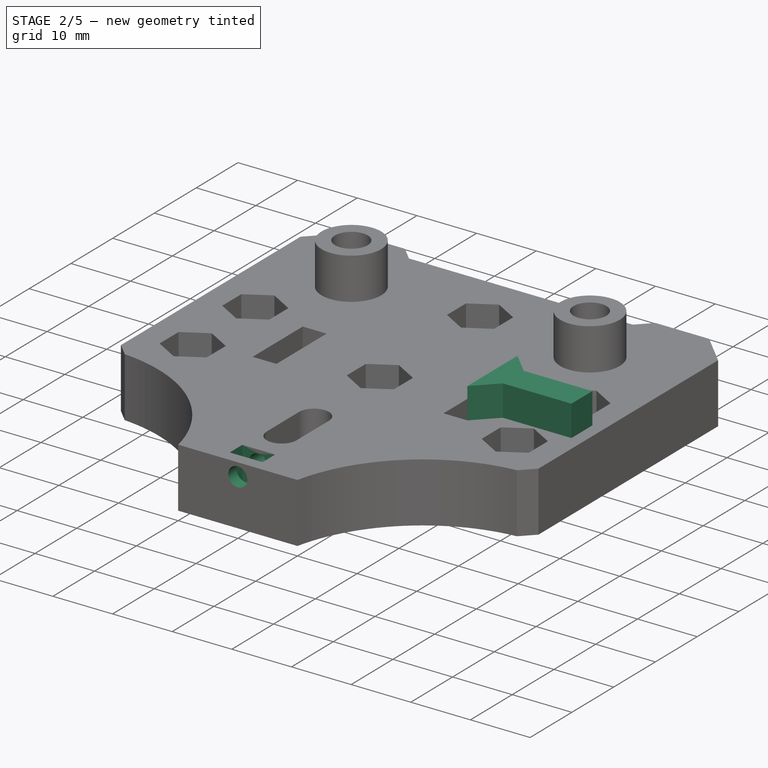
[diagram: stage 2 of 5 — iso view after this stage's code; geometry added in this stage tinted green]
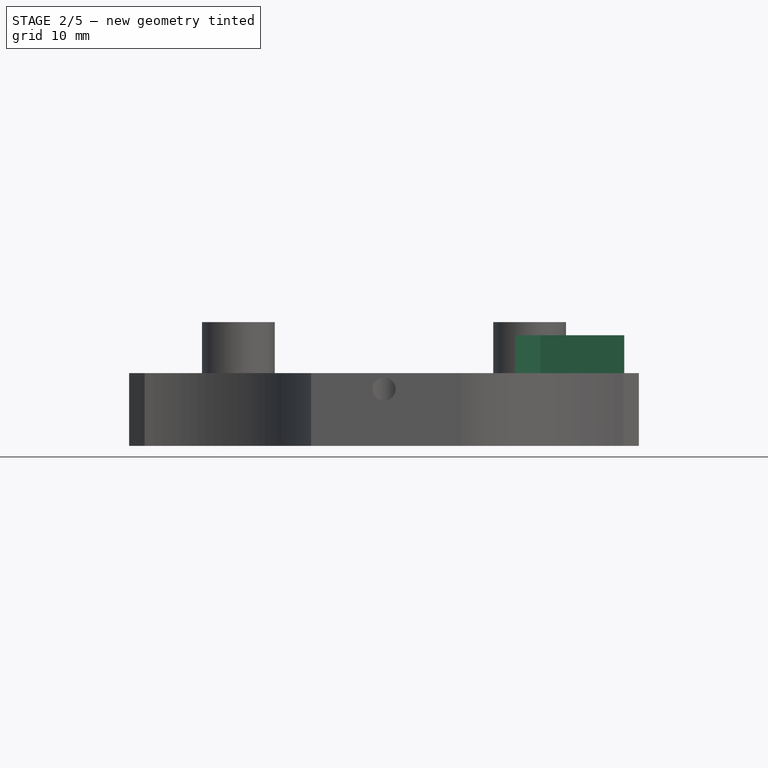
[diagram: stage 2 of 5 — front view after this stage's code; geometry added in this stage tinted green]
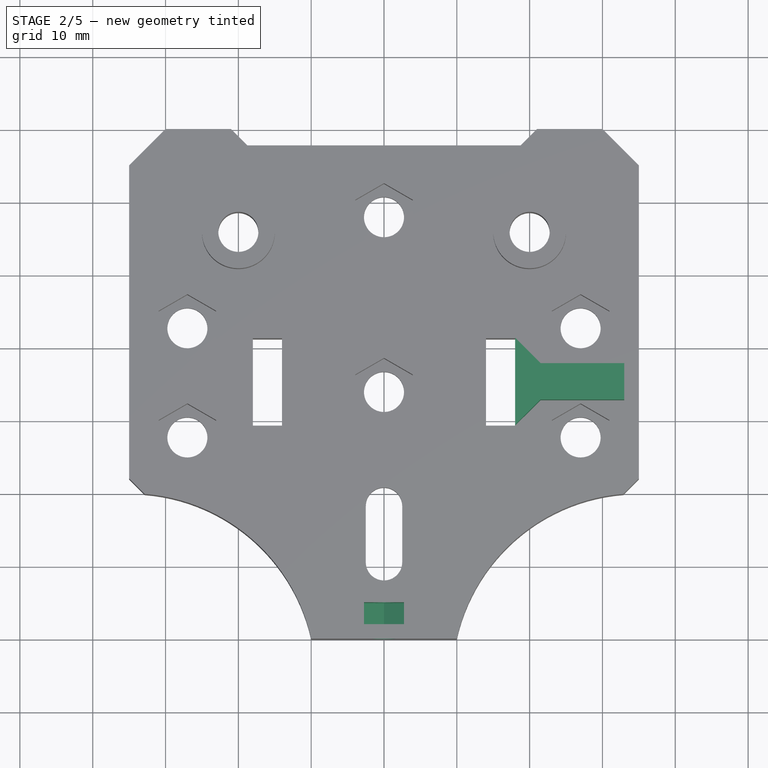
[diagram: stage 2 of 5 — top view after this stage's code; geometry added in this stage tinted green]
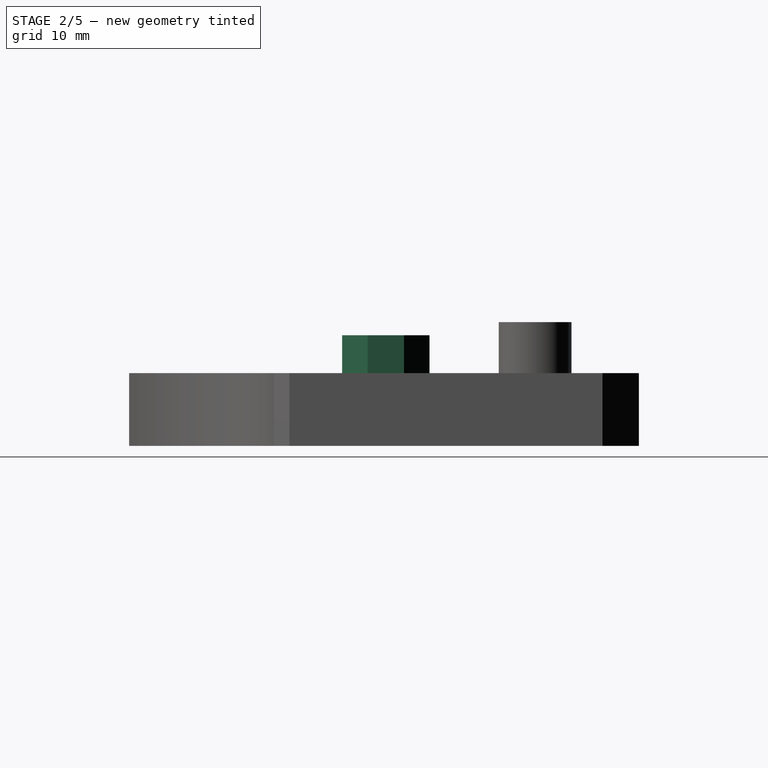
[diagram: stage 2 of 5 — right view after this stage's code; geometry added in this stage tinted green]
FEATURE [PartDesign::Plane] DatumPlane001
  AttachmentOffset = pos=(0,0,-2) rot=(0,0,1;0rad)
  Length = 81.8322
  MapMode = 5
  Placement = pos=(4.83e-14,-68,-4e-16) rot=(1,0,0;1.5708rad)
  ResizeMode = 0
  Support = -> [Pad001]
  Width = 61.8322
FEATURE [Sketcher::SketchObject] Sketch005
  FullyConstrained = true
  MapMode = 5
  Placement = pos=(4.83e-14,-68,-4e-16) rot=(1,0,0;1.5708rad)
  Support = -> [DatumPlane001]
  sketch-geometry (10):
    g0: LineSegment StartX=1.8e-15 StartY=2.82457 StartZ=0 EndX=2.75 EndY=4.41229 EndZ=0
    g1: LineSegment StartX=2.75 StartY=4.41229 StartZ=0 EndX=2.75 EndY=7.58771 EndZ=0
    g2: LineSegment StartX=2.75 StartY=7.58771 StartZ=0 EndX=-3.1e-15 EndY=9.17543 EndZ=0
    g3: LineSegment StartX=-3.1e-15 StartY=9.17543 StartZ=0 EndX=-2.75 EndY=7.58771 EndZ=0
    g4: LineSegment StartX=-2.75 StartY=7.58771 StartZ=0 EndX=-2.75 EndY=4.41229 EndZ=0
    g5: LineSegment StartX=-2.75 StartY=4.41229 StartZ=0 EndX=1.8e-15 EndY=2.82457 EndZ=0
    g6: Circle CenterX=0 CenterY=6 CenterZ=0 NormalX=0 NormalY=0 NormalZ=1 AngleXU=0 Radius=3.17543
    g7: LineSegment StartX=-2.75 StartY=7.58771 StartZ=0 EndX=-2.75 EndY=12 EndZ=0
    g8: LineSegment StartX=-2.75 StartY=12 StartZ=0 EndX=2.75 EndY=12 EndZ=0
    g9: LineSegment StartX=2.75 StartY=12 StartZ=0 EndX=2.75 EndY=7.58771 EndZ=0
  constraints (25):
    c: Coincident(g0,g1)
    c: Coincident(g1,g2)
    c: Coincident(g2,g3)
    c: Coincident(g3,g4)
    c: Coincident(g4,g5)
    c: Coincident(g5,g0)
    c: Equal(g0, g1-g5) x5
    c: PointOnObject(g0,g6)
    c: PointOnObject(g1,g6)
    c: PointOnObject(g2,g6)
    c: PointOnObject(g3,g6)
    c: PointOnObject(g4,g6)
    c: PointOnObject(g5,g6)
    c: PointOnObject(g6,g-2)
    c: Coincident(g3,g7)
    c: Vertical(g7)
    c: Coincident(g7,g8)
    c: Horizontal(g8)
    c: Coincident(g8,g9)
    c: Coincident(g9,g1)
    c: Vertical(g9)
    c: Perpendicular(g-1,g4)
    c: Distance(g6,g-1) = 6
    c: Distance(g3,g1) = 5.5
    c: DistanceY(g-1,g7) = 12
FEATURE [PartDesign::Pocket] Pocket002  label="Tensioner Adjustment Screw Hex Nut Pocket"
  BaseFeature = -> Pad001
  Direction = (-7e-16,1,-2e-16)
  Length = 3
  Length2 = 100
  Profile = -> Sketch005
  Type = 0
FEATURE [Sketcher::SketchObject] Sketch006
  FullyConstrained = true
  MapMode = 5
  Placement = pos=(4.83e-14,-68,-4e-16) rot=(1,0,0;1.5708rad)
  Support = -> [DatumPlane001]
  sketch-geometry (1):
    g0: Circle CenterX=0 CenterY=7.8 CenterZ=0 NormalX=0 NormalY=0 NormalZ=1 AngleXU=0 Radius=1.6
  constraints (3):
    c: PointOnObject(g0,g-2)
    c: Diameter(g0) = 3.2
    c: Distance(g0,g-1) = 7.8
FEATURE [PartDesign::Pocket] Pocket003  label="Tensioner Adjustment Screw Bolt Clearance"
  BaseFeature = -> Pocket002
  Direction = (-7e-16,1,-2e-16)
  Length = 8
  Length2 = 2
  Profile = -> Sketch006
  Type = 4
FEATURE [Sketcher::SketchObject] Sketch007
  FullyConstrained = true
  MapMode = 5
  Placement = pos=(0,0,10) rot=(0,0,1;0rad)
  Support = -> [DatumPlane]
  sketch-geometry (8):
    g0: LineSegment StartX=18 StartY=-34.75 StartZ=0 EndX=33 EndY=-34.75 EndZ=0
    g1: LineSegment StartX=18 StartY=-28.75 StartZ=0 EndX=21.5 EndY=-32.25 EndZ=0
    g2: LineSegment StartX=18 StartY=-40.75 StartZ=0 EndX=21.5 EndY=-37.25 EndZ=0
    g3: LineSegment StartX=18 StartY=-40.75 StartZ=0 EndX=18 EndY=-28.75 EndZ=0
    g4: LineSegment StartX=21.5 StartY=-37.25 StartZ=0 EndX=33 EndY=-37.25 EndZ=0
    g5: LineSegment StartX=33 StartY=-37.25 StartZ=0 EndX=33 EndY=-32.25 EndZ=0
    g6: LineSegment StartX=33 StartY=-32.25 StartZ=0 EndX=21.5 EndY=-32.25 EndZ=0
    g7: LineSegment StartX=21.5 StartY=-32.25 StartZ=0 EndX=21.5 EndY=-37.25 EndZ=0
  constraints (23):
    c: Horizontal(g0)
    c: Symmetric(g1,g2,g0)
    c: Coincident(g3,g2)
    c: Coincident(g3,g1)
    c: Coincident(g4,g5)
    c: Coincident(g5,g6)
    c: Coincident(g6,g7)
    c: Coincident(g7,g4)
    c: Horizontal(g4)
    c: Horizontal(g6)
    c: Vertical(g5)
    c: Coincident(g4,g2)
    c: Coincident(g1,g6)
    c: Angle(g6,g1) = 2.35619
    c: DistanceY(g5,g5) = 5
    c: PointOnObject(g0,g5)
    c: DistanceX(g0,g0) = 15
    c: DistanceX(g-1,g1) = 18
    c: DistanceY(g3,g3) = 12
    c: DistanceY(g1,g-1) = 28.75
    c: Vertical(g3)
    c: Equal(g2,g1)
    c: PointOnObject(g0,g3)
FEATURE [PartDesign::Pad] Pad002  label="Belt Rest Pads"
  BaseFeature = -> Pocket003
  Direction = (0,0,1)
  Length = 5.2
  Length2 = 100
  Profile = -> Sketch007
  Type = 0
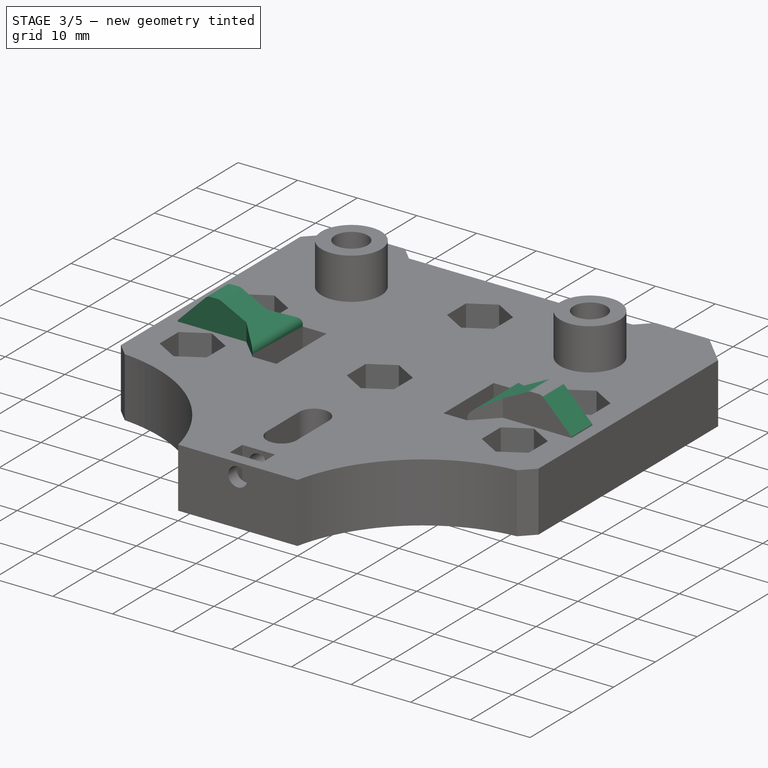
[diagram: stage 3 of 5 — iso view after this stage's code; geometry added in this stage tinted green]
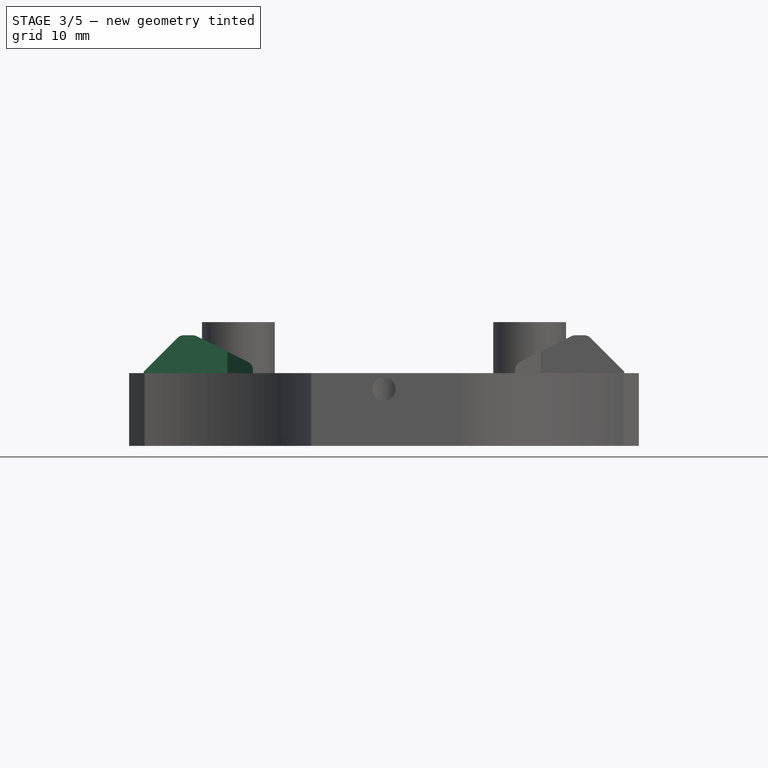
[diagram: stage 3 of 5 — front view after this stage's code; geometry added in this stage tinted green]
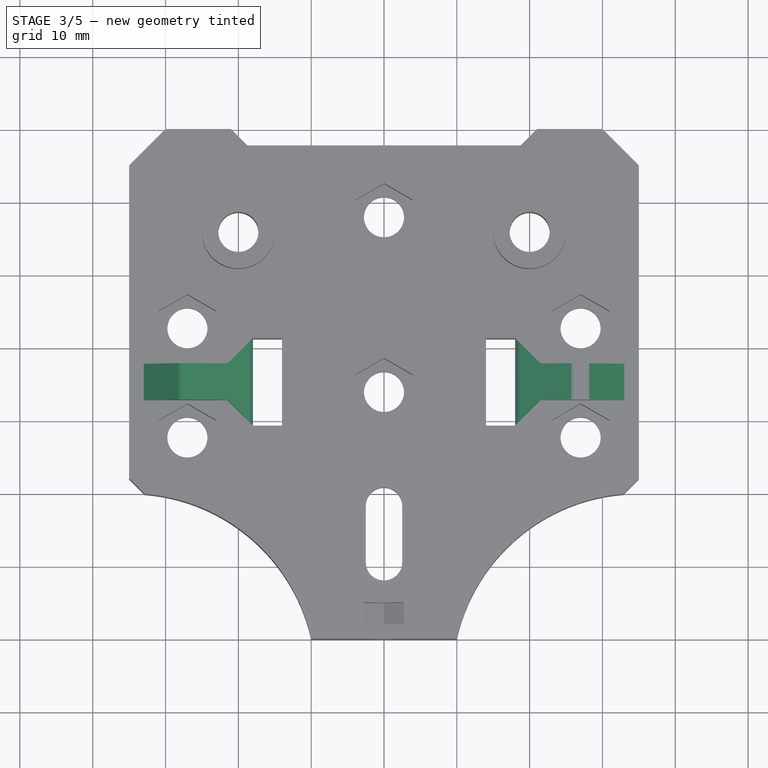
[diagram: stage 3 of 5 — top view after this stage's code; geometry added in this stage tinted green]
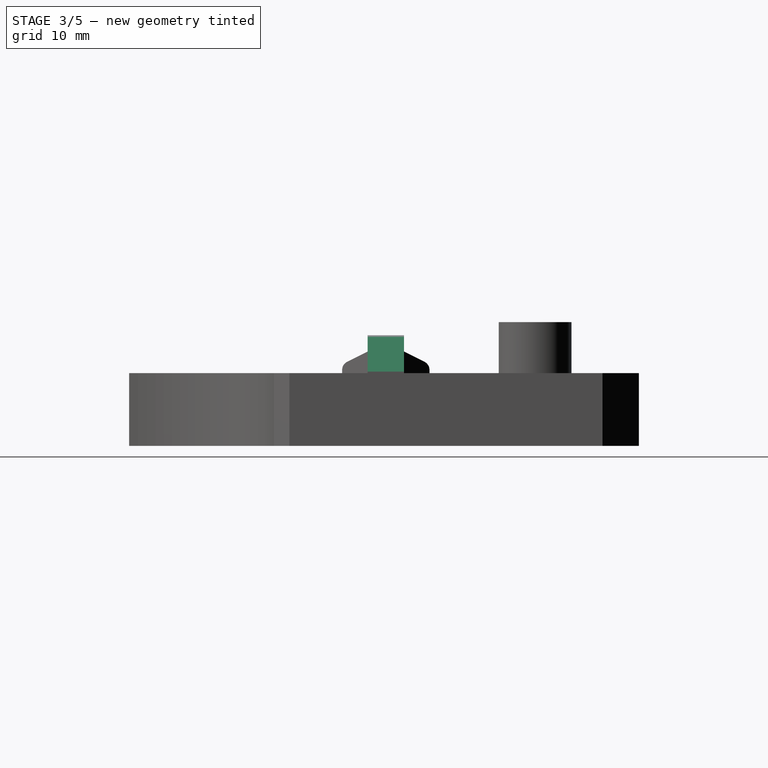
[diagram: stage 3 of 5 — right view after this stage's code; geometry added in this stage tinted green]
FEATURE [PartDesign::Chamfer] Chamfer
  Angle = 45
  Base = -> Pad002 [Edge269]
  BaseFeature = -> Pad002
  ChamferType = 1
  FlipDirection = false
  Size = 4
  Size2 = 8
  SupportTransform = false
  UseAllEdges = false
FEATURE [PartDesign::Chamfer] Chamfer001
  Angle = 45
  Base = -> Chamfer [Edge90]
  BaseFeature = -> Chamfer
  ChamferType = 0
  FlipDirection = false
  Size = 5
  Size2 = 1
  SupportTransform = false
  UseAllEdges = false
FEATURE [PartDesign::Fillet] Fillet
  Base = -> Chamfer001 [Edge8,Edge9,Edge13]
  BaseFeature = -> Chamfer001
  Radius = 1.25
  SupportTransform = false
  UseAllEdges = false
FEATURE [PartDesign::Mirrored] Mirrored  label="Mirroring GT2 Belt Rest Pad"
  BaseFeature = -> Fillet
  MirrorPlane = -> YZ_Plane
  Originals = -> [Pad002,Chamfer,Chamfer001,Fillet]
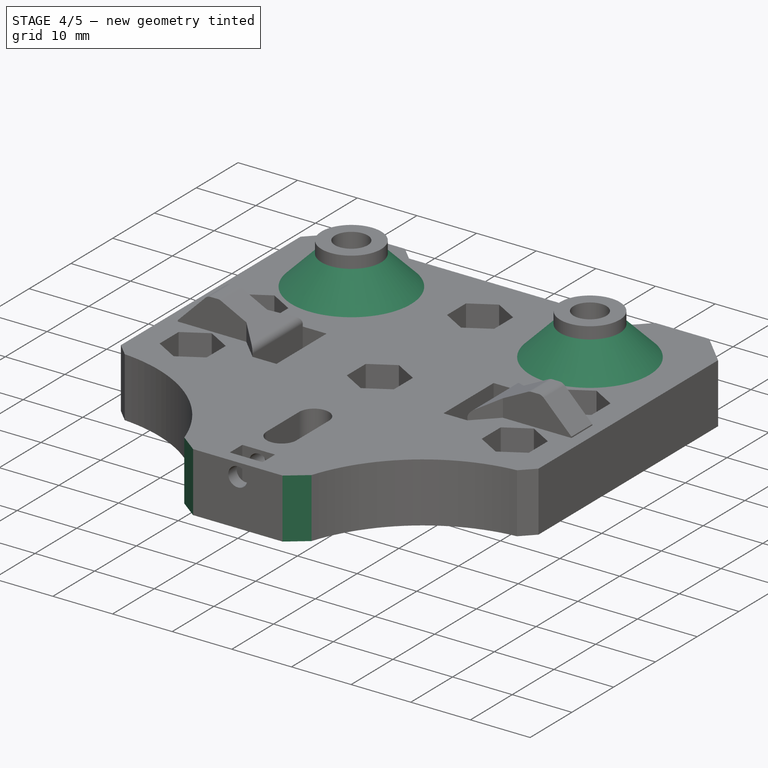
[diagram: stage 4 of 5 — iso view after this stage's code; geometry added in this stage tinted green]
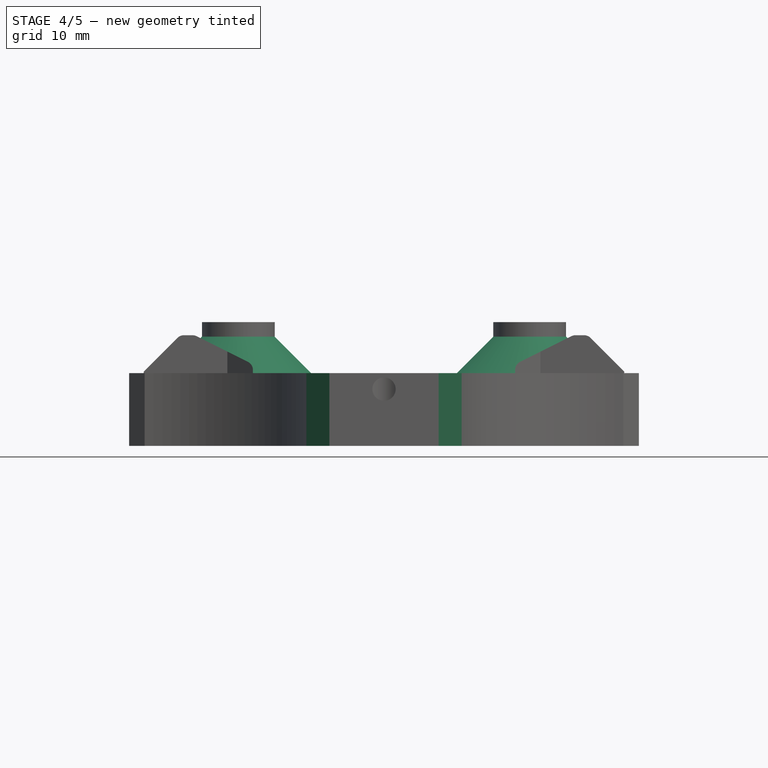
[diagram: stage 4 of 5 — front view after this stage's code; geometry added in this stage tinted green]
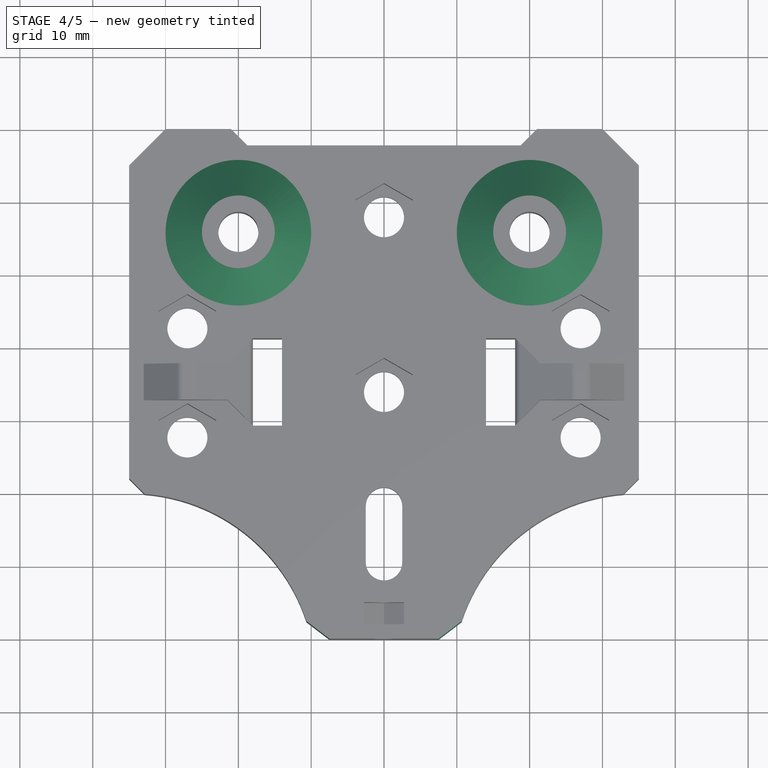
[diagram: stage 4 of 5 — top view after this stage's code; geometry added in this stage tinted green]
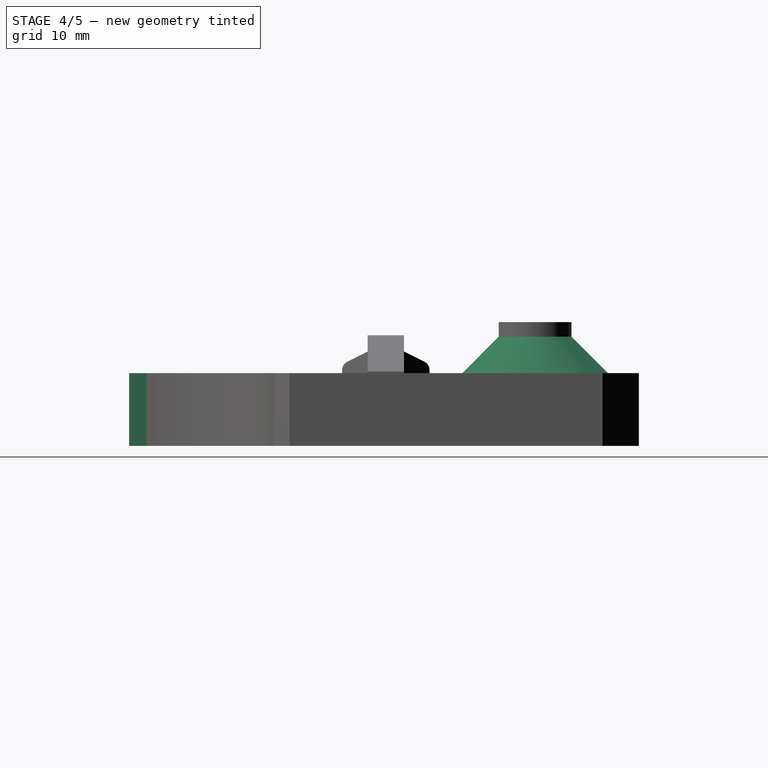
[diagram: stage 4 of 5 — right view after this stage's code; geometry added in this stage tinted green]
FEATURE [PartDesign::Fillet] Fillet001
  Base = -> Mirrored [Edge270,Edge277]
  BaseFeature = -> Mirrored
  Radius = 3.5
  SupportTransform = false
  UseAllEdges = false
FEATURE [PartDesign::Chamfer] Chamfer002
  Angle = 45
  Base = -> Fillet001 [Edge86,Edge59]
  BaseFeature = -> Fillet001
  ChamferType = 0
  FlipDirection = false
  Size = 5
  Size2 = 1
  SupportTransform = false
  UseAllEdges = false
FEATURE [PartDesign::Chamfer] Chamfer003
  Angle = 45
  Base = -> Chamfer002 [Edge104,Edge102]
  BaseFeature = -> Chamfer002
  ChamferType = 0
  FlipDirection = false
  Size = 2.5
  Size2 = 1
  SupportTransform = false
  UseAllEdges = false
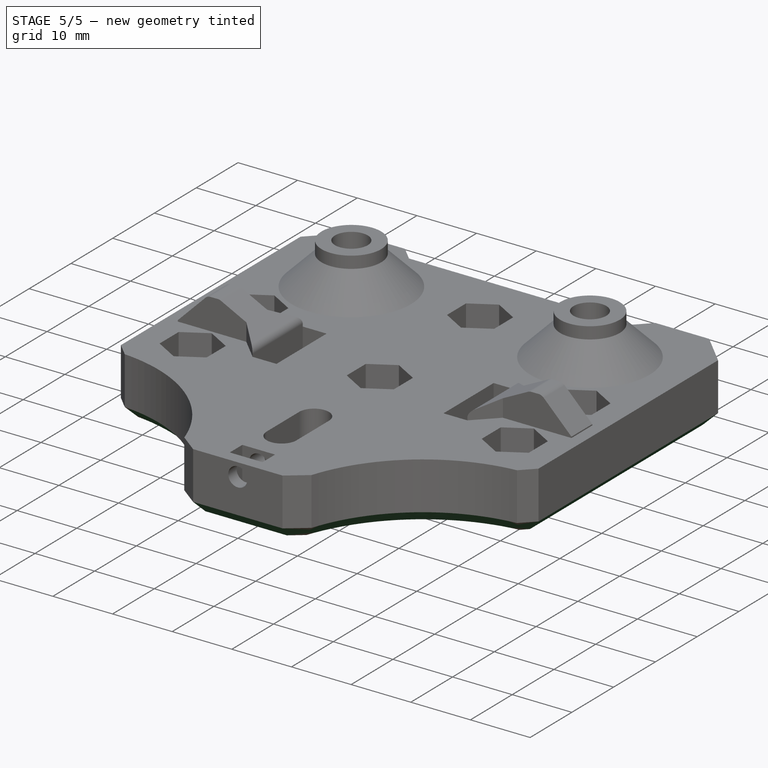
[diagram: stage 5 of 5 — iso view after this stage's code; geometry added in this stage tinted green]
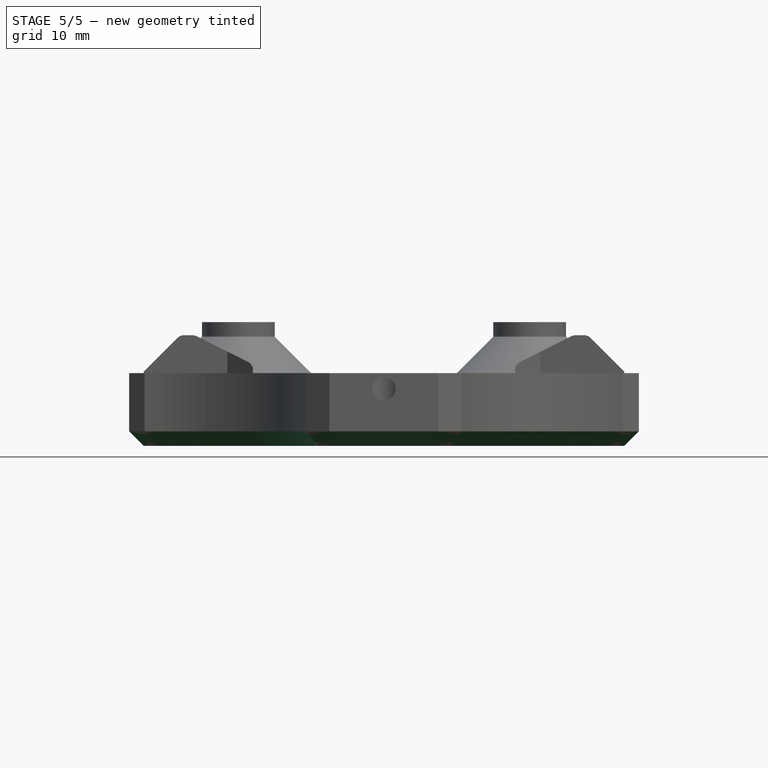
[diagram: stage 5 of 5 — front view after this stage's code; geometry added in this stage tinted green]
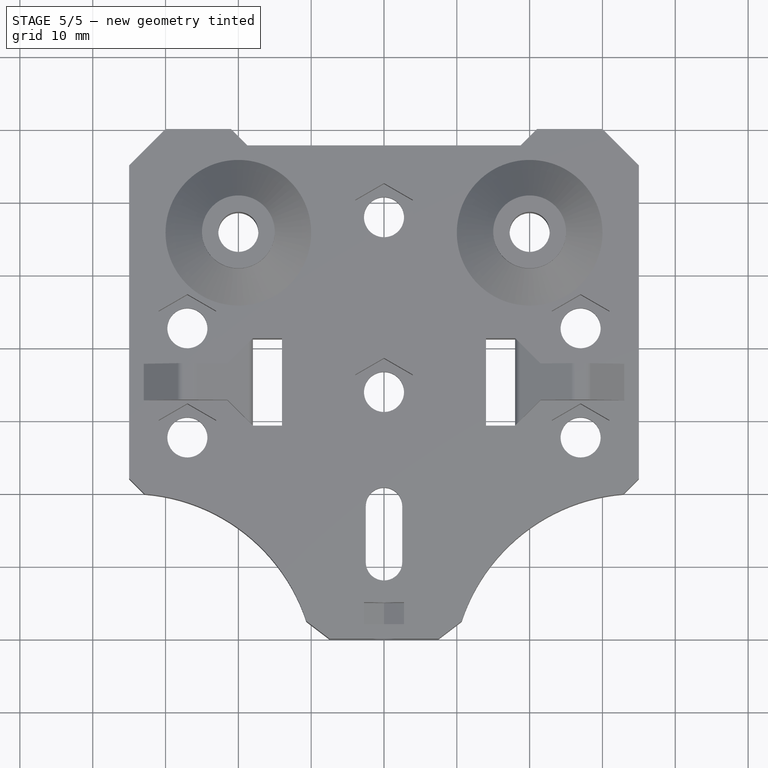
[diagram: stage 5 of 5 — top view after this stage's code; geometry added in this stage tinted green]
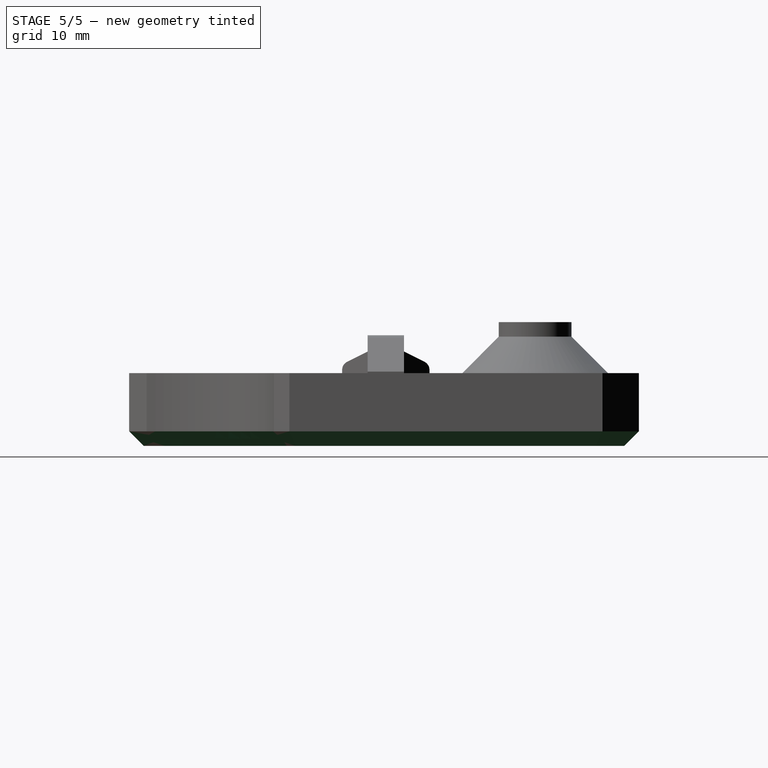
[diagram: stage 5 of 5 — right view after this stage's code; geometry added in this stage tinted green]
FEATURE [PartDesign::Chamfer] Chamfer004  label="Eliminate Elephant Foot Chamfer"
  Angle = 45
  Base = -> Chamfer003 [Edge106,Edge110,Edge111,Edge108,Edge104,Edge100,Edge95,Edge91,Edge86,Edge82,Edge79,Edge85,Edge90,Edge94,Edge98,Edge102]
  BaseFeature = -> Chamfer003
  ChamferType = 0
  FlipDirection = false
  Size = 2
  Size2 = 1
  SupportTransform = false
  UseAllEdges = false
FEATURE [PartDesign::Plane] DatumPlane002  label="PrintPlane"
  Length = 86.3095
  MapMode = 5
  Placement = pos=(0,0,0) rot=(1,0,0;3.14159rad)
  ResizeMode = 0
  Support = -> [Chamfer004]
  Width = 111.31
FEATURE [PartDesign::Plane] DatumPlane003
  Length = 86.3095
  MapMode = 5
  Placement = pos=(0,0,5.8) rot=(1,0,0;3.14159rad)
  ResizeMode = 0
  Support = -> [Chamfer004]
  Width = 111.31
FEATURE [Sketcher::SketchObject] Sketch008
  FullyConstrained = true
  MapMode = 5
  Placement = pos=(0,0,5.8) rot=(1,0,0;3.14159rad)
  Support = -> [DatumPlane003]
  sketch-geometry (26):
    g0: LineSegment StartX=-4.33013 StartY=62 StartZ=0 EndX=4.33013 EndY=62 EndZ=0
    g1: LineSegment StartX=-4.33013 StartY=49.25 StartZ=0 EndX=4.33013 EndY=49.25 EndZ=0
    g2: ArcOfCircle CenterX=-2e-16 CenterY=59.5 CenterZ=0 NormalX=0 NormalY=0 NormalZ=1 AngleXU=0 Radius=5 StartAngle=0.523599 EndAngle=2.61799
    g3: ArcOfCircle CenterX=0 CenterY=51.75 CenterZ=0 NormalX=0 NormalY=0 NormalZ=1 AngleXU=0 Radius=5 StartAngle=3.66519 EndAngle=5.75959
    g4: LineSegment StartX=-22.75 StartY=11.502 StartZ=0 EndX=-17.25 EndY=11.502 EndZ=0
    g5: LineSegment StartX=-17.25 StartY=11.502 StartZ=0 EndX=-17.25 EndY=17.002 EndZ=0
    g6: LineSegment StartX=-17.25 StartY=17.002 StartZ=0 EndX=-22.75 EndY=17.002 EndZ=0
    g7: LineSegment StartX=-22.75 StartY=17.002 StartZ=0 EndX=-22.75 EndY=11.502 EndZ=0
    g8: GeomPoint X=-20 Y=11.502 Z=0
    g9: ArcOfCircle CenterX=-20 CenterY=14.25 CenterZ=0 NormalX=0 NormalY=0 NormalZ=1 AngleXU=0 Radius=4.5 StartAngle=4.05493 EndAngle=5.36985
    g10: LineSegment StartX=-22.75 StartY=17.002 StartZ=0 EndX=-22.75 EndY=17.812 EndZ=0
    g11: LineSegment StartX=-22.75 StartY=11.502 StartZ=0 EndX=-22.75 EndY=10.688 EndZ=0
    g12: LineSegment StartX=-17.25 StartY=11.502 StartZ=0 EndX=-17.25 EndY=10.688 EndZ=0
    g13: LineSegment StartX=-17.25 StartY=17.002 StartZ=0 EndX=-17.25 EndY=17.812 EndZ=0
    g14: ArcOfCircle CenterX=-20 CenterY=14.25 CenterZ=0 NormalX=0 NormalY=0 NormalZ=1 AngleXU=0 Radius=4.5 StartAngle=0.913333 EndAngle=2.22826
    g15: LineSegment StartX=17.25 StartY=11.5 StartZ=0 EndX=22.75 EndY=11.5 EndZ=0
    g16: LineSegment StartX=22.75 StartY=11.5 StartZ=0 EndX=22.75 EndY=17 EndZ=0
    g17: LineSegment StartX=22.75 StartY=17 StartZ=0 EndX=17.25 EndY=17 EndZ=0
    g18: LineSegment StartX=17.25 StartY=17 StartZ=0 EndX=17.25 EndY=11.5 EndZ=0
    g19: GeomPoint X=20 Y=11.5 Z=0
    g20: ArcOfCircle CenterX=20 CenterY=14.25 CenterZ=0 NormalX=0 NormalY=0 NormalZ=1 AngleXU=0 Radius=4.5 StartAngle=4.05493 EndAngle=5.36985
    g21: LineSegment StartX=17.25 StartY=17 StartZ=0 EndX=17.25 EndY=17.812 EndZ=0
    g22: LineSegment StartX=17.25 StartY=11.5 StartZ=0 EndX=17.25 EndY=10.688 EndZ=0
    g23: LineSegment StartX=22.75 StartY=11.5 StartZ=0 EndX=22.75 EndY=10.688 EndZ=0
    g24: LineSegment StartX=22.75 StartY=17 StartZ=0 EndX=22.75 EndY=17.812 EndZ=0
    g25: ArcOfCircle CenterX=20 CenterY=14.25 CenterZ=0 NormalX=0 NormalY=0 NormalZ=1 AngleXU=0 Radius=4.5 StartAngle=0.913333 EndAngle=2.22826
  constraints (72):
    c: Horizontal(g0)
    c: Coincident(g2,g0)
    c: Coincident(g2,g0)
    c: Coincident(g3,g1)
    c: Coincident(g3,g1)
    c: Coincident(g4,g5)
    c: Coincident(g5,g6)
    c: Coincident(g6,g7)
    c: Coincident(g7,g4)
    c: Horizontal(g4)
    c: Horizontal(g6)
    c: Vertical(g5)
    c: Vertical(g7)
    c: Symmetric(g4,g4,g8)
    c: Coincident(g10,g6)
    c: Vertical(g10)
    c: Coincident(g11,g4)
    c: Vertical(g11)
    c: Coincident(g12,g4)
    c: Vertical(g12)
    c: Coincident(g13,g5)
    c: Vertical(g13)
    c: Coincident(g9,g11)
    c: Coincident(g14,g10)
    c: Equal(g9,g14)
    c: Coincident(g9,g12)
    c: Coincident(g14,g13)
    c: Coincident(g9,g14)
    c: Coincident(g15,g16)
    c: Coincident(g16,g17)
    c: Coincident(g17,g18)
    c: Coincident(g18,g15)
    c: Horizontal(g15)
    c: Horizontal(g17)
    c: Vertical(g16)
    c: Vertical(g18)
    c: Symmetric(g15,g15,g19)
    c: Coincident(g21,g17)
    c: Vertical(g21)
    c: Coincident(g22,g15)
    c: Vertical(g22)
    c: Coincident(g23,g15)
    c: Vertical(g23)
    c: Coincident(g24,g16)
    c: Vertical(g24)
    c: Coincident(g20,g22)
    c: Coincident(g25,g21)
    c: Equal(g20,g25)
    c: Coincident(g20,g23)
    c: Coincident(g25,g24)
    c: Coincident(g20,g25)
    c: Equal(g23,g22)
    c: Symmetric(g20,g9,g-2)
    c: DistanceX(g9,g20) = 40
    c: DistanceY(g-1,g9) = 14.25
    c: Diameter(g14) = 9
    c: DistanceX(g15,g15) = 5.5
    c: Equal(g15,g4)
    c: Equal(g5,g18)
    c: DistanceY(g5,g5) = 5.5
    c: DistanceY(g13,g13) = 0.81
    c: Equal(g13,g10)
    c: Equal(g25,g14)
    c: Equal(g22,g21)
    c: Equal(g1,g0)
    c: DistanceY(g3,g2) = 7.75
    c: Equal(g2,g3)
    c: Diameter(g2) = 10
    c: DistanceY(g1,g0) = 12.75
    c: Vertical(g1,g0)
    c: Symmetric(g1,g1,g-2)
    c: DistanceY(g-1,g3) = 51.75
FEATURE [Sketcher::SketchObject] Sketch009
  FullyConstrained = false
  MapMode = 5
  Placement = pos=(0,0,5.8) rot=(1,0,0;3.14159rad)
  Support = -> [DatumPlane003]
  sketch-geometry (13):
    g0: LineSegment StartX=-2.5 StartY=47.4199 StartZ=0 EndX=-2.5 EndY=63.8301 EndZ=0
    g1: LineSegment StartX=-5 StartY=59.5 StartZ=0 EndX=-5 EndY=51.75 EndZ=0
    g2: LineSegment StartX=5 StartY=59.5 StartZ=0 EndX=5 EndY=51.75 EndZ=0
    g3: LineSegment StartX=2.5 StartY=47.4199 StartZ=0 EndX=2.5 EndY=63.8301 EndZ=0
    g4: ArcOfCircle CenterX=-2e-16 CenterY=59.5 CenterZ=0 NormalX=0 NormalY=0 NormalZ=1 AngleXU=0 Radius=5 StartAngle=2.0944 EndAngle=3.14159
    g5: ArcOfCircle CenterX=-2e-16 CenterY=59.5 CenterZ=0 NormalX=0 NormalY=0 NormalZ=1 AngleXU=0 Radius=5 StartAngle=4e-16 EndAngle=1.0472
    g6: ArcOfCircle CenterX=0 CenterY=51.75 CenterZ=0 NormalX=0 NormalY=0 NormalZ=1 AngleXU=0 Radius=5 StartAngle=3.14159 EndAngle=4.18879
    g7: ArcOfCircle CenterX=0 CenterY=51.75 CenterZ=0 NormalX=0 NormalY=0 NormalZ=1 AngleXU=0 Radius=5 StartAngle=5.23599 EndAngle=6.28318
    g8: LineSegment StartX=-22.75 StartY=10.688 StartZ=0 EndX=-22.75 EndY=17.812 EndZ=0
    g9: LineSegment StartX=-17.25 StartY=10.688 StartZ=0 EndX=-17.25 EndY=17.812 EndZ=0
    g10: ArcOfCircle CenterX=-20 CenterY=14.25 CenterZ=0 NormalX=0 NormalY=0 NormalZ=1 AngleXU=0 Radius=4.5 StartAngle=5.36985 EndAngle=7.19652
    g11: ArcOfCircle CenterX=-20 CenterY=14.25 CenterZ=0 NormalX=0 NormalY=0 NormalZ=1 AngleXU=0 Radius=4.5 StartAngle=2.22826 EndAngle=4.05493
    g12: ArcOfCircle CenterX=-20 CenterY=14.25 CenterZ=0 NormalX=0 NormalY=0 NormalZ=1 AngleXU=0 Radius=4.5 StartAngle=5.36985 EndAngle=7.19652
  constraints (18):
    c: Vertical(g0)
    c: Vertical(g1)
    c: Vertical(g2)
    c: Vertical(g3)
    c: Coincident(g4,g0)
    c: Coincident(g1,g4)
    c: Coincident(g2,g5)
    c: Coincident(g3,g5)
    c: Coincident(g1,g6)
    c: Coincident(g2,g7)
    c: Coincident(g3,g7)
    c: Coincident(g6,g0)
    c: Vertical(g8)
    c: Coincident(g11,g8)
    c: Coincident(g12,g10)
    c: PointOnObject(g11,g8)
    c: PointOnObject(g12,g9)
    c: Coincident(g11,g12)
FEATURE [Sketcher::SketchObject] Sketch010
  FullyConstrained = false
  MapMode = 5
  Placement = pos=(0,0,5.8) rot=(1,0,0;3.14159rad)
  Support = -> [DatumPlane003]
  sketch-geometry (16):
    g0: LineSegment StartX=-2.5 StartY=47.4199 StartZ=0 EndX=-2.5 EndY=63.8301 EndZ=0
    g1: LineSegment StartX=-5 StartY=59.5 StartZ=0 EndX=-5 EndY=51.75 EndZ=0
    g2: LineSegment StartX=5 StartY=59.5 StartZ=0 EndX=5 EndY=51.75 EndZ=0
    g3: LineSegment StartX=2.5 StartY=47.4199 StartZ=0 EndX=2.5 EndY=63.8301 EndZ=0
    g4: ArcOfCircle CenterX=-2e-16 CenterY=59.5 CenterZ=0 NormalX=0 NormalY=0 NormalZ=1 AngleXU=0 Radius=5 StartAngle=2.0944 EndAngle=3.14159
    g5: ArcOfCircle CenterX=-2e-16 CenterY=59.5 CenterZ=0 NormalX=0 NormalY=0 NormalZ=1 AngleXU=0 Radius=5 StartAngle=4e-16 EndAngle=1.0472
    g6: ArcOfCircle CenterX=0 CenterY=51.75 CenterZ=0 NormalX=0 NormalY=0 NormalZ=1 AngleXU=0 Radius=5 StartAngle=3.14159 EndAngle=4.18879
    g7: ArcOfCircle CenterX=0 CenterY=51.75 CenterZ=0 NormalX=0 NormalY=0 NormalZ=1 AngleXU=0 Radius=5 StartAngle=5.23599 EndAngle=6.28318
    g8: LineSegment StartX=-22.75 StartY=10.688 StartZ=0 EndX=-22.75 EndY=17.812 EndZ=0
    g9: LineSegment StartX=-17.25 StartY=10.688 StartZ=0 EndX=-17.25 EndY=17.812 EndZ=0
    g10: ArcOfCircle CenterX=-20 CenterY=14.25 CenterZ=0 NormalX=0 NormalY=0 NormalZ=1 AngleXU=0 Radius=4.5 StartAngle=2.22826 EndAngle=4.05493
    g11: ArcOfCircle CenterX=-20 CenterY=14.25 CenterZ=0 NormalX=0 NormalY=0 NormalZ=1 AngleXU=0 Radius=4.5 StartAngle=5.36985 EndAngle=7.19652
    g12: LineSegment StartX=17.25 StartY=10.688 StartZ=0 EndX=17.25 EndY=17.812 EndZ=0
    g13: LineSegment StartX=22.75 StartY=10.688 StartZ=0 EndX=22.75 EndY=17.812 EndZ=0
    g14: ArcOfCircle CenterX=20 CenterY=14.25 CenterZ=0 NormalX=0 NormalY=0 NormalZ=1 AngleXU=0 Radius=4.5 StartAngle=5.36985 EndAngle=7.19652
    g15: ArcOfCircle CenterX=20 CenterY=14.25 CenterZ=0 NormalX=0 NormalY=0 NormalZ=1 AngleXU=0 Radius=4.5 StartAngle=2.22826 EndAngle=4.05493
  constraints (27):
    c: Vertical(g0)
    c: Vertical(g1)
    c: Vertical(g2)
    c: Vertical(g3)
    c: Coincident(g4,g0)
    c: Coincident(g1,g4)
    c: Coincident(g2,g5)
    c: Coincident(g3,g5)
    c: Coincident(g1,g6)
    c: Coincident(g2,g7)
    c: Coincident(g3,g7)
    c: Coincident(g6,g0)
    c: Vertical(g8)
    c: Coincident(g10,g8)
    c: PointOnObject(g10,g8)
    c: Coincident(g10,g11)
    c: Vertical(g12)
    c: Coincident(g15,g12)
    c: Equal(g14,g15)
    c: Coincident(g13,g14)
    c: Vertical(g13)
    c: Coincident(g14,g15)
    c: Coincident(g13,g14)
    c: Coincident(g15,g12)
    c: Coincident(g9,g11)
    c: Equal(g14,g11)
    c: Vertical(g9)
FEATURE [PartDesign::Pad] Pad003
  BaseFeature = -> Chamfer004
  Direction = (0,0,-1)
  Length = 0.4
  Length2 = 10
  Profile = -> Sketch008
  ReferenceAxis = -> Sketch008 [N_Axis]
  Type = 0
FEATURE [PartDesign::Pad] Pad004
  BaseFeature = -> Pad003
  Direction = (0,0,-1)
  Length = 0.8
  Length2 = 10
  Profile = -> Sketch010
  ReferenceAxis = -> Sketch010 [N_Axis]
  Type = 0
FEATURE [PartDesign::Pad] Pad005
  BaseFeature = -> Pad004
  Direction = (0,0,-1)
  Length = 0.8
  Length2 = 10
  Profile = -> Sketch009
  ReferenceAxis = -> Sketch009 [N_Axis]
  Type = 0
FEATURE [PartDesign::Body] Body
  Group = -> [Sketch,Pad,DatumPlane,Sketch002,Sketch003,Pocket,Pocket001,Sketch004,Pad001,DatumPlane001,Sketch005,Pocket002,Sketch006,Pocket003,Sketch007,Pad002,Chamfer,Chamfer001,Fillet,Mirrored,Fillet001,Chamfer002,Chamfer003,Chamfer004,DatumPlane002,DatumPlane003,Sketch008,Sketch009,Sketch010,Pad003,Pad004,Pad005]
  Origin = -> Origin
  Tip = -> Pad005
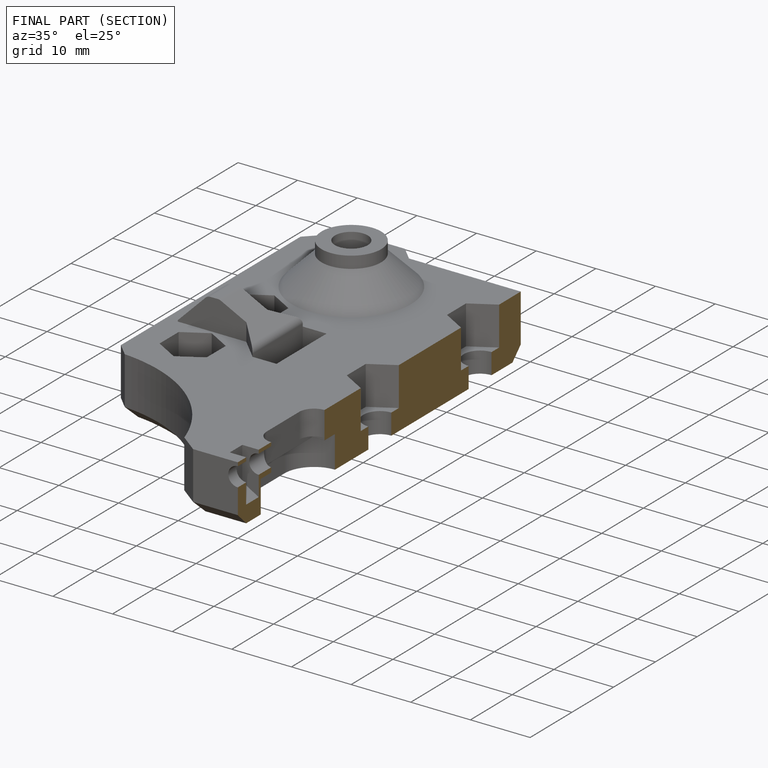
[diagram: finished part — half-section view (interior)]
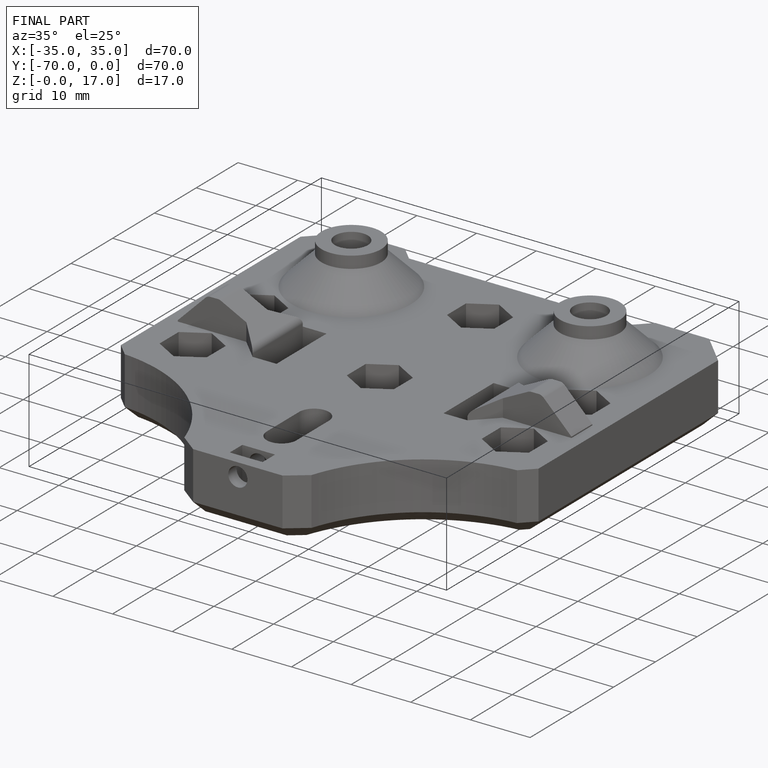
[diagram: finished part — iso view with bounding-box wireframe]
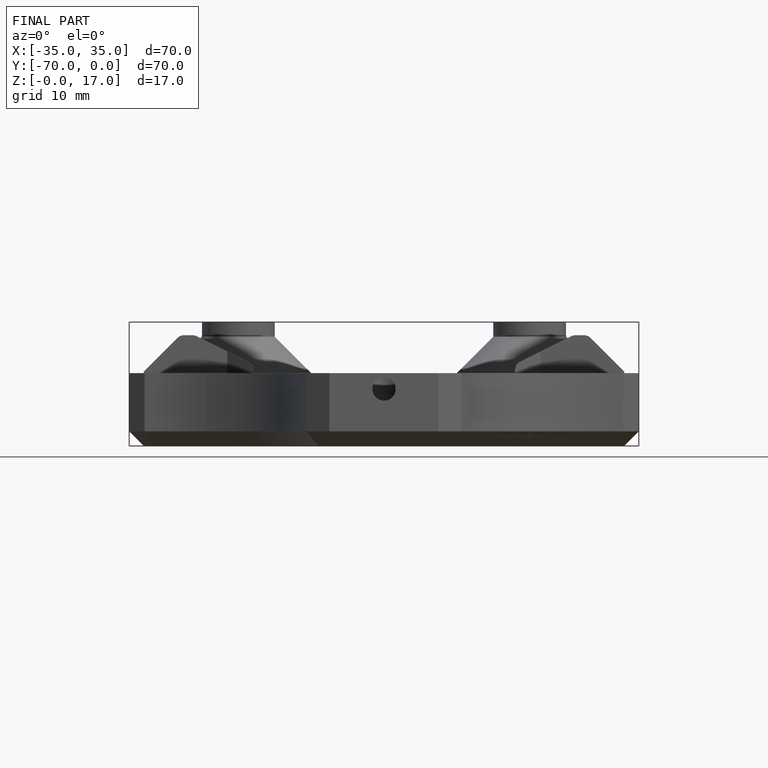
[diagram: finished part — front view with bounding-box wireframe]
